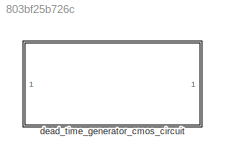
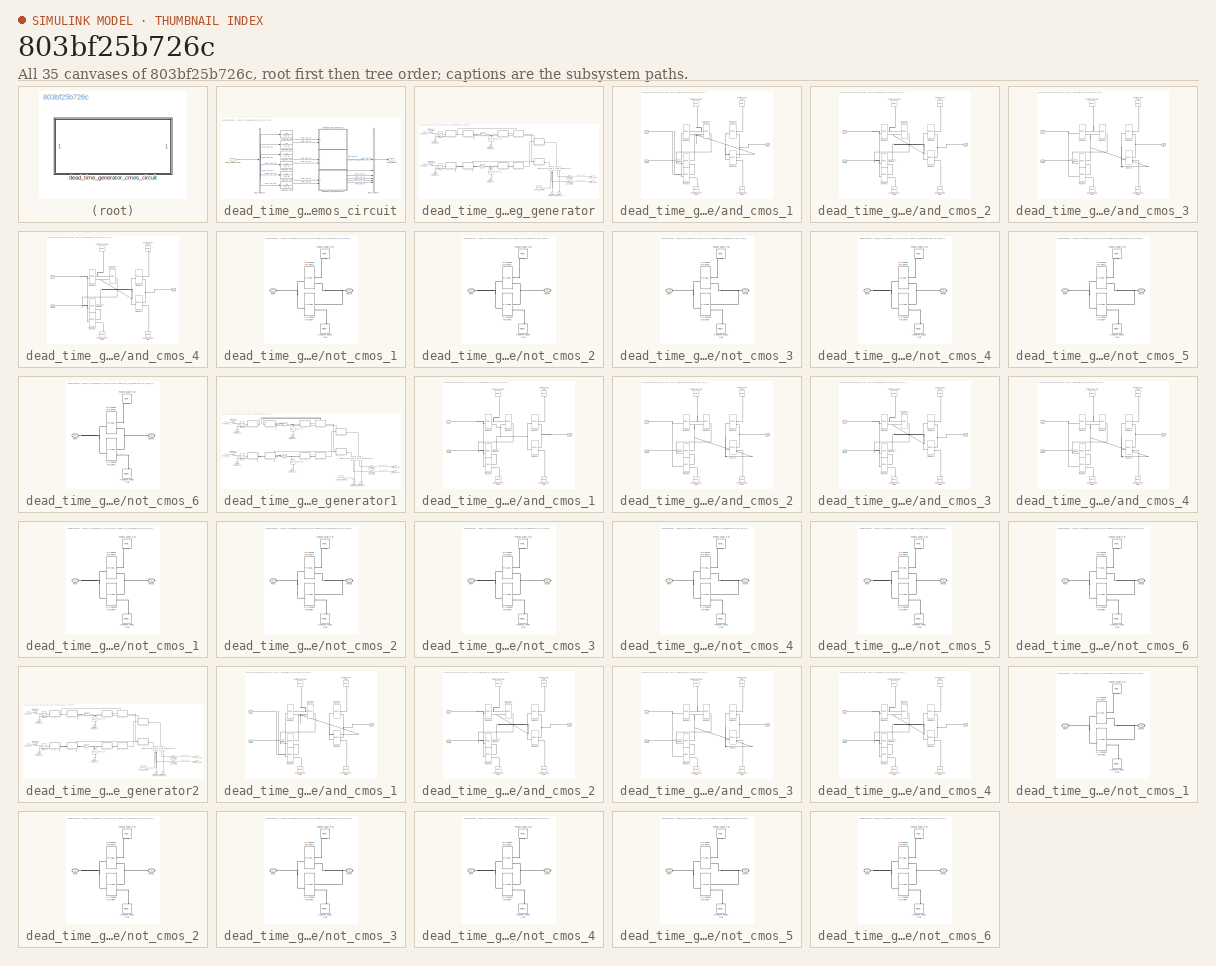
[diagram: thumbnail index - all 35 canvases of the model, root first then tree order]
MODEL slx_803bf25b726c
KIND library
CONFIG AbsTol = auto
CONFIG EnableMultiTasking = off
CONFIG FixedStep = auto
CONFIG MaxStep = auto
CONFIG MinStep = auto
CONFIG RelTol = 1e-3
CONFIG SampleTimeConstraint = Unconstrained
CONFIG SolverName = VariableStepAuto
CONFIG StartTime = 0.0
CONFIG StopTime = 10.0
BLOCK [SubSystem] dead_time_generator_cmos_circuit
BLOCK [BusCreator] dead_time_generator_cmos_circuit/Bus Creator
  DisplayOption = bar
  InheritFromInputs = on
  Inputs = 6
BLOCK [BusSelector] dead_time_generator_cmos_circuit/Bus Selector
  OutputSignals = gate_cmd_Q1,gate_cmd_Q2,gate_cmd_Q3,gate_cmd_Q4,gate_cmd_Q5,gate_cmd_Q6
BLOCK [TransferFcn] dead_time_generator_cmos_circuit/Transfer Fcn
  Denominator = [ts 1]
BLOCK [TransferFcn] dead_time_generator_cmos_circuit/Transfer Fcn1
  Denominator = [ts 1]
BLOCK [TransferFcn] dead_time_generator_cmos_circuit/Transfer Fcn2
  Denominator = [ts 1]
BLOCK [TransferFcn] dead_time_generator_cmos_circuit/Transfer Fcn3
  Denominator = [ts 1]
BLOCK [TransferFcn] dead_time_generator_cmos_circuit/Transfer Fcn4
  Denominator = [ts 1]
BLOCK [TransferFcn] dead_time_generator_cmos_circuit/Transfer Fcn5
  Denominator = [ts 1]
BLOCK [Outport] dead_time_generator_cmos_circuit/cmd_gates
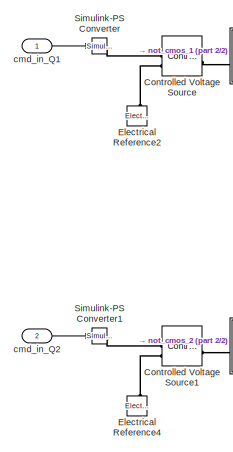
[diagram: dead_time_generator_cmos_circuit/deadtime_leg_generator - part 1/2, middle left region]
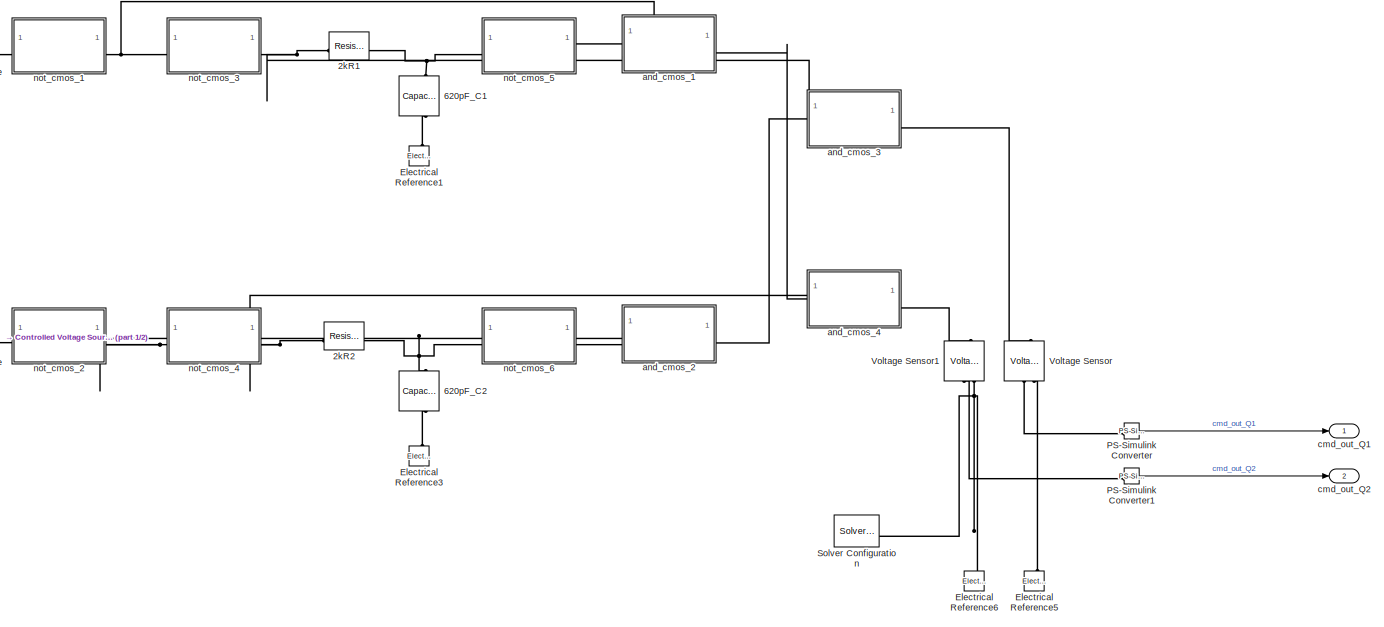
[diagram: dead_time_generator_cmos_circuit/deadtime_leg_generator - part 2/2, most of the canvas]
BLOCK [SubSystem] dead_time_generator_cmos_circuit/deadtime_leg_generator
BLOCK [Reference] dead_time_generator_cmos_circuit/deadtime_leg_generator/2kR1  REF=fl_lib/Electrical/Electrical Elements/Resistor
  SourceBlock = fl_lib/Electrical/Electrical Elements/Resistor
  SourceType = Resistor
BLOCK [Reference] dead_time_generator_cmos_circuit/deadtime_leg_generator/2kR2  REF=fl_lib/Electrical/Electrical Elements/Resistor
  SourceBlock = fl_lib/Electrical/Electrical Elements/Resistor
  SourceType = Resistor
BLOCK [Reference] dead_time_generator_cmos_circuit/deadtime_leg_generator/620pF_C1  REF=fl_lib/Electrical/Electrical Elements/Capacitor
  NameLocation = left
  SourceBlock = fl_lib/Electrical/Electrical Elements/Capacitor
  SourceType = Capacitor
BLOCK [Reference] dead_time_generator_cmos_circuit/deadtime_leg_generator/620pF_C2  REF=fl_lib/Electrical/Electrical Elements/Capacitor
  NameLocation = left
  SourceBlock = fl_lib/Electrical/Electrical Elements/Capacitor
  SourceType = Capacitor
BLOCK [Reference] dead_time_generator_cmos_circuit/deadtime_leg_generator/Controlled Voltage Source  REF=fl_lib/Electrical/Electrical Sources/Controlled Voltage
Source
  SourceBlock = fl_lib/Electrical/Electrical Sources/Controlled Voltage\nSource
  SourceType = Controlled Voltage\nSource
BLOCK [Reference] dead_time_generator_cmos_circuit/deadtime_leg_generator/Controlled Voltage Source1  REF=fl_lib/Electrical/Electrical Sources/Controlled Voltage
Source
  SourceBlock = fl_lib/Electrical/Electrical Sources/Controlled Voltage\nSource
  SourceType = Controlled Voltage\nSource
BLOCK [Reference] dead_time_generator_cmos_circuit/deadtime_leg_generator/Electrical Reference1  REF=fl_lib/Electrical/Electrical Elements/Electrical Reference
  NameLocation = right
  SourceBlock = fl_lib/Electrical/Electrical Elements/Electrical Reference
  SourceType = Electrical Reference
BLOCK [Reference] dead_time_generator_cmos_circuit/deadtime_leg_generator/Electrical Reference2  REF=fl_lib/Electrical/Electrical Elements/Electrical Reference
  NameLocation = right
  SourceBlock = fl_lib/Electrical/Electrical Elements/Electrical Reference
  SourceType = Electrical Reference
BLOCK [Reference] dead_time_generator_cmos_circuit/deadtime_leg_generator/Electrical Reference3  REF=fl_lib/Electrical/Electrical Elements/Electrical Reference
  NameLocation = right
  SourceBlock = fl_lib/Electrical/Electrical Elements/Electrical Reference
  SourceType = Electrical Reference
BLOCK [Reference] dead_time_generator_cmos_circuit/deadtime_leg_generator/Electrical Reference4  REF=fl_lib/Electrical/Electrical Elements/Electrical Reference
  NameLocation = right
  SourceBlock = fl_lib/Electrical/Electrical Elements/Electrical Reference
  SourceType = Electrical Reference
BLOCK [Reference] dead_time_generator_cmos_circuit/deadtime_leg_generator/Electrical Reference5  REF=fl_lib/Electrical/Electrical Elements/Electrical Reference
  SourceBlock = fl_lib/Electrical/Electrical Elements/Electrical Reference
  SourceType = Electrical Reference
BLOCK [Reference] dead_time_generator_cmos_circuit/deadtime_leg_generator/Electrical Reference6  REF=fl_lib/Electrical/Electrical Elements/Electrical Reference
  SourceBlock = fl_lib/Electrical/Electrical Elements/Electrical Reference
  SourceType = Electrical Reference
BLOCK [Reference] dead_time_generator_cmos_circuit/deadtime_leg_generator/PS-Simulink Converter  REF=nesl_utility/PS-Simulink
Converter
  SourceBlock = nesl_utility/PS-Simulink\nConverter
  SourceType = PS-Simulink\nConverter
BLOCK [Reference] dead_time_generator_cmos_circuit/deadtime_leg_generator/PS-Simulink Converter1  REF=nesl_utility/PS-Simulink
Converter
  SourceBlock = nesl_utility/PS-Simulink\nConverter
  SourceType = PS-Simulink\nConverter
BLOCK [Reference] dead_time_generator_cmos_circuit/deadtime_leg_generator/Simulink-PS Converter  REF=nesl_utility/Simulink-PS
Converter
  SourceBlock = nesl_utility/Simulink-PS\nConverter
  SourceType = Simulink-PS\nConverter
BLOCK [Reference] dead_time_generator_cmos_circuit/deadtime_leg_generator/Simulink-PS Converter1  REF=nesl_utility/Simulink-PS
Converter
  SourceBlock = nesl_utility/Simulink-PS\nConverter
  SourceType = Simulink-PS\nConverter
BLOCK [Reference] dead_time_generator_cmos_circuit/deadtime_leg_generator/Solver Configuration  REF=nesl_utility/Solver
Configuration
  SourceBlock = nesl_utility/Solver\nConfiguration
  SourceType = Solver\nConfiguration
BLOCK [Reference] dead_time_generator_cmos_circuit/deadtime_leg_generator/Voltage Sensor  REF=fl_lib/Electrical/Electrical Sensors/Voltage Sensor
  NameLocation = right
  SourceBlock = fl_lib/Electrical/Electrical Sensors/Voltage Sensor
  SourceType = Voltage Sensor
BLOCK [Reference] dead_time_generator_cmos_circuit/deadtime_leg_generator/Voltage Sensor1  REF=fl_lib/Electrical/Electrical Sensors/Voltage Sensor
  NameLocation = right
  SourceBlock = fl_lib/Electrical/Electrical Sensors/Voltage Sensor
  SourceType = Voltage Sensor
BLOCK [SubSystem] dead_time_generator_cmos_circuit/deadtime_leg_generator/and_cmos_1
  PortSchema = {"entries":[{"content":{"sides":[{"content":{"connectorIds":["LConn1"]},"type":"ConnectorPlacement.EquallySpacedRectSide","uuid":"4468949f-f30a-49ce-949f-963bd607b697"},{"content":{"connectorIds":["RConn1"],"side":"RIGHT"},"type":"ConnectorPlacement.EquallySpacedRectSide","uuid":"ceda4040-901d-4fda-af9a-fc2c310617d8"},{"content":{"connectorIds":["LConn2"],"side":"TOP"},"type":"ConnectorPlacement.E...<+253ch>  <repeated x12 — deduplicated; at blocks: and_cmos_1, and_cmos_2, and_cmos_3, and_cmos_4>
BLOCK [Reference] dead_time_generator_cmos_circuit/deadtime_leg_generator/and_cmos_1/N-Channel MOSFET  REF=ee_lib/Semiconductors &
Converters/N-Channel MOSFET
  SourceBlock = ee_lib/Semiconductors &\nConverters/N-Channel MOSFET
  SourceType = N-Channel MOSFET
BLOCK [Reference] dead_time_generator_cmos_circuit/deadtime_leg_generator/and_cmos_1/N-Channel MOSFET1  REF=ee_lib/Semiconductors &
Converters/N-Channel MOSFET
  SourceBlock = ee_lib/Semiconductors &\nConverters/N-Channel MOSFET
  SourceType = N-Channel MOSFET
BLOCK [Reference] dead_time_generator_cmos_circuit/deadtime_leg_generator/and_cmos_1/N-Channel MOSFET2  REF=ee_lib/Semiconductors &
Converters/N-Channel MOSFET
  SourceBlock = ee_lib/Semiconductors &\nConverters/N-Channel MOSFET
  SourceType = N-Channel MOSFET
BLOCK [Reference] dead_time_generator_cmos_circuit/deadtime_leg_generator/and_cmos_1/Negative Supply Rail1  REF=ee_lib/Sources/Negative Supply Rail
  NameLocation = right
  SourceBlock = ee_lib/Sources/Negative Supply Rail
  SourceType = Negative Supply Rail
BLOCK [Reference] dead_time_generator_cmos_circuit/deadtime_leg_generator/and_cmos_1/Negative Supply Rail2  REF=ee_lib/Sources/Negative Supply Rail
  NameLocation = right
  SourceBlock = ee_lib/Sources/Negative Supply Rail
  SourceType = Negative Supply Rail
BLOCK [Reference] dead_time_generator_cmos_circuit/deadtime_leg_generator/and_cmos_1/P-Channel MOSFET1  REF=ee_lib/Semiconductors &
Converters/P-Channel MOSFET
  SourceBlock = ee_lib/Semiconductors &\nConverters/P-Channel MOSFET
  SourceType = P-Channel MOSFET
BLOCK [Reference] dead_time_generator_cmos_circuit/deadtime_leg_generator/and_cmos_1/P-Channel MOSFET2  REF=ee_lib/Semiconductors &
Converters/P-Channel MOSFET
  SourceBlock = ee_lib/Semiconductors &\nConverters/P-Channel MOSFET
  SourceType = P-Channel MOSFET
BLOCK [Reference] dead_time_generator_cmos_circuit/deadtime_leg_generator/and_cmos_1/P-Channel MOSFET3  REF=ee_lib/Semiconductors &
Converters/P-Channel MOSFET
  SourceBlock = ee_lib/Semiconductors &\nConverters/P-Channel MOSFET
  SourceType = P-Channel MOSFET
BLOCK [Reference] dead_time_generator_cmos_circuit/deadtime_leg_generator/and_cmos_1/Positive Supply Rail  REF=ee_lib/Sources/Positive Supply Rail
  NameLocation = right
  SourceBlock = ee_lib/Sources/Positive Supply Rail
  SourceType = Positive Supply Rail
BLOCK [Reference] dead_time_generator_cmos_circuit/deadtime_leg_generator/and_cmos_1/Positive Supply Rail1  REF=ee_lib/Sources/Positive Supply Rail
  NameLocation = right
  SourceBlock = ee_lib/Sources/Positive Supply Rail
  SourceType = Positive Supply Rail
BLOCK [PMIOPort] dead_time_generator_cmos_circuit/deadtime_leg_generator/and_cmos_1/inputA
  Port = 2
  Side = Left
BLOCK [PMIOPort] dead_time_generator_cmos_circuit/deadtime_leg_generator/and_cmos_1/inputB
  Side = Left
BLOCK [PMIOPort] dead_time_generator_cmos_circuit/deadtime_leg_generator/and_cmos_1/output
  Port = 3
  Side = Right
BLOCK [SubSystem] dead_time_generator_cmos_circuit/deadtime_leg_generator/and_cmos_2
BLOCK [Reference] dead_time_generator_cmos_circuit/deadtime_leg_generator/and_cmos_2/N-Channel MOSFET  REF=ee_lib/Semiconductors &
Converters/N-Channel MOSFET
  SourceBlock = ee_lib/Semiconductors &\nConverters/N-Channel MOSFET
  SourceType = N-Channel MOSFET
BLOCK [Reference] dead_time_generator_cmos_circuit/deadtime_leg_generator/and_cmos_2/N-Channel MOSFET1  REF=ee_lib/Semiconductors &
Converters/N-Channel MOSFET
  SourceBlock = ee_lib/Semiconductors &\nConverters/N-Channel MOSFET
  SourceType = N-Channel MOSFET
BLOCK [Reference] dead_time_generator_cmos_circuit/deadtime_leg_generator/and_cmos_2/N-Channel MOSFET2  REF=ee_lib/Semiconductors &
Converters/N-Channel MOSFET
  SourceBlock = ee_lib/Semiconductors &\nConverters/N-Channel MOSFET
  SourceType = N-Channel MOSFET
BLOCK [Reference] dead_time_generator_cmos_circuit/deadtime_leg_generator/and_cmos_2/Negative Supply Rail1  REF=ee_lib/Sources/Negative Supply Rail
  NameLocation = right
  SourceBlock = ee_lib/Sources/Negative Supply Rail
  SourceType = Negative Supply Rail
BLOCK [Reference] dead_time_generator_cmos_circuit/deadtime_leg_generator/and_cmos_2/Negative Supply Rail2  REF=ee_lib/Sources/Negative Supply Rail
  NameLocation = right
  SourceBlock = ee_lib/Sources/Negative Supply Rail
  SourceType = Negative Supply Rail
BLOCK [Reference] dead_time_generator_cmos_circuit/deadtime_leg_generator/and_cmos_2/P-Channel MOSFET1  REF=ee_lib/Semiconductors &
Converters/P-Channel MOSFET
  SourceBlock = ee_lib/Semiconductors &\nConverters/P-Channel MOSFET
  SourceType = P-Channel MOSFET
BLOCK [Reference] dead_time_generator_cmos_circuit/deadtime_leg_generator/and_cmos_2/P-Channel MOSFET2  REF=ee_lib/Semiconductors &
Converters/P-Channel MOSFET
  SourceBlock = ee_lib/Semiconductors &\nConverters/P-Channel MOSFET
  SourceType = P-Channel MOSFET
BLOCK [Reference] dead_time_generator_cmos_circuit/deadtime_leg_generator/and_cmos_2/P-Channel MOSFET3  REF=ee_lib/Semiconductors &
Converters/P-Channel MOSFET
  SourceBlock = ee_lib/Semiconductors &\nConverters/P-Channel MOSFET
  SourceType = P-Channel MOSFET
BLOCK [Reference] dead_time_generator_cmos_circuit/deadtime_leg_generator/and_cmos_2/Positive Supply Rail  REF=ee_lib/Sources/Positive Supply Rail
  NameLocation = right
  SourceBlock = ee_lib/Sources/Positive Supply Rail
  SourceType = Positive Supply Rail
BLOCK [Reference] dead_time_generator_cmos_circuit/deadtime_leg_generator/and_cmos_2/Positive Supply Rail1  REF=ee_lib/Sources/Positive Supply Rail
  NameLocation = right
  SourceBlock = ee_lib/Sources/Positive Supply Rail
  SourceType = Positive Supply Rail
BLOCK [PMIOPort] dead_time_generator_cmos_circuit/deadtime_leg_generator/and_cmos_2/inputA
  Port = 2
  Side = Left
BLOCK [PMIOPort] dead_time_generator_cmos_circuit/deadtime_leg_generator/and_cmos_2/inputB
  Side = Left
BLOCK [PMIOPort] dead_time_generator_cmos_circuit/deadtime_leg_generator/and_cmos_2/output
  Port = 3
  Side = Right
BLOCK [SubSystem] dead_time_generator_cmos_circuit/deadtime_leg_generator/and_cmos_3
BLOCK [Reference] dead_time_generator_cmos_circuit/deadtime_leg_generator/and_cmos_3/N-Channel MOSFET  REF=ee_lib/Semiconductors &
Converters/N-Channel MOSFET
  SourceBlock = ee_lib/Semiconductors &\nConverters/N-Channel MOSFET
  SourceType = N-Channel MOSFET
BLOCK [Reference] dead_time_generator_cmos_circuit/deadtime_leg_generator/and_cmos_3/N-Channel MOSFET1  REF=ee_lib/Semiconductors &
Converters/N-Channel MOSFET
  SourceBlock = ee_lib/Semiconductors &\nConverters/N-Channel MOSFET
  SourceType = N-Channel MOSFET
BLOCK [Reference] dead_time_generator_cmos_circuit/deadtime_leg_generator/and_cmos_3/N-Channel MOSFET2  REF=ee_lib/Semiconductors &
Converters/N-Channel MOSFET
  SourceBlock = ee_lib/Semiconductors &\nConverters/N-Channel MOSFET
  SourceType = N-Channel MOSFET
BLOCK [Reference] dead_time_generator_cmos_circuit/deadtime_leg_generator/and_cmos_3/Negative Supply Rail1  REF=ee_lib/Sources/Negative Supply Rail
  NameLocation = right
  SourceBlock = ee_lib/Sources/Negative Supply Rail
  SourceType = Negative Supply Rail
BLOCK [Reference] dead_time_generator_cmos_circuit/deadtime_leg_generator/and_cmos_3/Negative Supply Rail2  REF=ee_lib/Sources/Negative Supply Rail
  NameLocation = right
  SourceBlock = ee_lib/Sources/Negative Supply Rail
  SourceType = Negative Supply Rail
BLOCK [Reference] dead_time_generator_cmos_circuit/deadtime_leg_generator/and_cmos_3/P-Channel MOSFET1  REF=ee_lib/Semiconductors &
Converters/P-Channel MOSFET
  SourceBlock = ee_lib/Semiconductors &\nConverters/P-Channel MOSFET
  SourceType = P-Channel MOSFET
BLOCK [Reference] dead_time_generator_cmos_circuit/deadtime_leg_generator/and_cmos_3/P-Channel MOSFET2  REF=ee_lib/Semiconductors &
Converters/P-Channel MOSFET
  SourceBlock = ee_lib/Semiconductors &\nConverters/P-Channel MOSFET
  SourceType = P-Channel MOSFET
BLOCK [Reference] dead_time_generator_cmos_circuit/deadtime_leg_generator/and_cmos_3/P-Channel MOSFET3  REF=ee_lib/Semiconductors &
Converters/P-Channel MOSFET
  SourceBlock = ee_lib/Semiconductors &\nConverters/P-Channel MOSFET
  SourceType = P-Channel MOSFET
BLOCK [Reference] dead_time_generator_cmos_circuit/deadtime_leg_generator/and_cmos_3/Positive Supply Rail  REF=ee_lib/Sources/Positive Supply Rail
  NameLocation = right
  SourceBlock = ee_lib/Sources/Positive Supply Rail
  SourceType = Positive Supply Rail
BLOCK [Reference] dead_time_generator_cmos_circuit/deadtime_leg_generator/and_cmos_3/Positive Supply Rail1  REF=ee_lib/Sources/Positive Supply Rail
  NameLocation = right
  SourceBlock = ee_lib/Sources/Positive Supply Rail
  SourceType = Positive Supply Rail
BLOCK [PMIOPort] dead_time_generator_cmos_circuit/deadtime_leg_generator/and_cmos_3/inputA
  Port = 2
  Side = Left
BLOCK [PMIOPort] dead_time_generator_cmos_circuit/deadtime_leg_generator/and_cmos_3/inputB
  Side = Left
BLOCK [PMIOPort] dead_time_generator_cmos_circuit/deadtime_leg_generator/and_cmos_3/output
  Port = 3
  Side = Right
BLOCK [SubSystem] dead_time_generator_cmos_circuit/deadtime_leg_generator/and_cmos_4
BLOCK [Reference] dead_time_generator_cmos_circuit/deadtime_leg_generator/and_cmos_4/N-Channel MOSFET  REF=ee_lib/Semiconductors &
Converters/N-Channel MOSFET
  SourceBlock = ee_lib/Semiconductors &\nConverters/N-Channel MOSFET
  SourceType = N-Channel MOSFET
BLOCK [Reference] dead_time_generator_cmos_circuit/deadtime_leg_generator/and_cmos_4/N-Channel MOSFET1  REF=ee_lib/Semiconductors &
Converters/N-Channel MOSFET
  SourceBlock = ee_lib/Semiconductors &\nConverters/N-Channel MOSFET
  SourceType = N-Channel MOSFET
BLOCK [Reference] dead_time_generator_cmos_circuit/deadtime_leg_generator/and_cmos_4/N-Channel MOSFET2  REF=ee_lib/Semiconductors &
Converters/N-Channel MOSFET
  SourceBlock = ee_lib/Semiconductors &\nConverters/N-Channel MOSFET
  SourceType = N-Channel MOSFET
BLOCK [Reference] dead_time_generator_cmos_circuit/deadtime_leg_generator/and_cmos_4/Negative Supply Rail1  REF=ee_lib/Sources/Negative Supply Rail
  NameLocation = right
  SourceBlock = ee_lib/Sources/Negative Supply Rail
  SourceType = Negative Supply Rail
BLOCK [Reference] dead_time_generator_cmos_circuit/deadtime_leg_generator/and_cmos_4/Negative Supply Rail2  REF=ee_lib/Sources/Negative Supply Rail
  NameLocation = right
  SourceBlock = ee_lib/Sources/Negative Supply Rail
  SourceType = Negative Supply Rail
BLOCK [Reference] dead_time_generator_cmos_circuit/deadtime_leg_generator/and_cmos_4/P-Channel MOSFET1  REF=ee_lib/Semiconductors &
Converters/P-Channel MOSFET
  SourceBlock = ee_lib/Semiconductors &\nConverters/P-Channel MOSFET
  SourceType = P-Channel MOSFET
BLOCK [Reference] dead_time_generator_cmos_circuit/deadtime_leg_generator/and_cmos_4/P-Channel MOSFET2  REF=ee_lib/Semiconductors &
Converters/P-Channel MOSFET
  SourceBlock = ee_lib/Semiconductors &\nConverters/P-Channel MOSFET
  SourceType = P-Channel MOSFET
BLOCK [Reference] dead_time_generator_cmos_circuit/deadtime_leg_generator/and_cmos_4/P-Channel MOSFET3  REF=ee_lib/Semiconductors &
Converters/P-Channel MOSFET
  SourceBlock = ee_lib/Semiconductors &\nConverters/P-Channel MOSFET
  SourceType = P-Channel MOSFET
BLOCK [Reference] dead_time_generator_cmos_circuit/deadtime_leg_generator/and_cmos_4/Positive Supply Rail  REF=ee_lib/Sources/Positive Supply Rail
  NameLocation = right
  SourceBlock = ee_lib/Sources/Positive Supply Rail
  SourceType = Positive Supply Rail
BLOCK [Reference] dead_time_generator_cmos_circuit/deadtime_leg_generator/and_cmos_4/Positive Supply Rail1  REF=ee_lib/Sources/Positive Supply Rail
  NameLocation = right
  SourceBlock = ee_lib/Sources/Positive Supply Rail
  SourceType = Positive Supply Rail
BLOCK [PMIOPort] dead_time_generator_cmos_circuit/deadtime_leg_generator/and_cmos_4/inputA
  Port = 2
  Side = Left
BLOCK [PMIOPort] dead_time_generator_cmos_circuit/deadtime_leg_generator/and_cmos_4/inputB
  Side = Left
BLOCK [PMIOPort] dead_time_generator_cmos_circuit/deadtime_leg_generator/and_cmos_4/output
  Port = 3
  Side = Right
BLOCK [Inport] dead_time_generator_cmos_circuit/deadtime_leg_generator/cmd_in_Q1
BLOCK [Inport] dead_time_generator_cmos_circuit/deadtime_leg_generator/cmd_in_Q2
  Port = 2
BLOCK [Outport] dead_time_generator_cmos_circuit/deadtime_leg_generator/cmd_out_Q1
BLOCK [Outport] dead_time_generator_cmos_circuit/deadtime_leg_generator/cmd_out_Q2
  Port = 2
BLOCK [SubSystem] dead_time_generator_cmos_circuit/deadtime_leg_generator/not_cmos_1
BLOCK [Reference] dead_time_generator_cmos_circuit/deadtime_leg_generator/not_cmos_1/N-Channel MOSFET  REF=ee_lib/Semiconductors &
Converters/N-Channel MOSFET
  SourceBlock = ee_lib/Semiconductors &\nConverters/N-Channel MOSFET
  SourceType = N-Channel MOSFET
BLOCK [Reference] dead_time_generator_cmos_circuit/deadtime_leg_generator/not_cmos_1/Negative Supply Rail  REF=ee_lib/Sources/Negative Supply Rail
  NameLocation = right
  SourceBlock = ee_lib/Sources/Negative Supply Rail
  SourceType = Negative Supply Rail
BLOCK [Reference] dead_time_generator_cmos_circuit/deadtime_leg_generator/not_cmos_1/P-Channel MOSFET1  REF=ee_lib/Semiconductors &
Converters/P-Channel MOSFET
  SourceBlock = ee_lib/Semiconductors &\nConverters/P-Channel MOSFET
  SourceType = P-Channel MOSFET
BLOCK [Reference] dead_time_generator_cmos_circuit/deadtime_leg_generator/not_cmos_1/Positive Supply Rail  REF=ee_lib/Sources/Positive Supply Rail
  NameLocation = right
  SourceBlock = ee_lib/Sources/Positive Supply Rail
  SourceType = Positive Supply Rail
BLOCK [PMIOPort] dead_time_generator_cmos_circuit/deadtime_leg_generator/not_cmos_1/input
  Side = Left
BLOCK [PMIOPort] dead_time_generator_cmos_circuit/deadtime_leg_generator/not_cmos_1/output
  Port = 2
  Side = Right
BLOCK [SubSystem] dead_time_generator_cmos_circuit/deadtime_leg_generator/not_cmos_2
BLOCK [Reference] dead_time_generator_cmos_circuit/deadtime_leg_generator/not_cmos_2/N-Channel MOSFET  REF=ee_lib/Semiconductors &
Converters/N-Channel MOSFET
  SourceBlock = ee_lib/Semiconductors &\nConverters/N-Channel MOSFET
  SourceType = N-Channel MOSFET
BLOCK [Reference] dead_time_generator_cmos_circuit/deadtime_leg_generator/not_cmos_2/Negative Supply Rail  REF=ee_lib/Sources/Negative Supply Rail
  NameLocation = right
  SourceBlock = ee_lib/Sources/Negative Supply Rail
  SourceType = Negative Supply Rail
BLOCK [Reference] dead_time_generator_cmos_circuit/deadtime_leg_generator/not_cmos_2/P-Channel MOSFET1  REF=ee_lib/Semiconductors &
Converters/P-Channel MOSFET
  SourceBlock = ee_lib/Semiconductors &\nConverters/P-Channel MOSFET
  SourceType = P-Channel MOSFET
BLOCK [Reference] dead_time_generator_cmos_circuit/deadtime_leg_generator/not_cmos_2/Positive Supply Rail  REF=ee_lib/Sources/Positive Supply Rail
  NameLocation = right
  SourceBlock = ee_lib/Sources/Positive Supply Rail
  SourceType = Positive Supply Rail
BLOCK [PMIOPort] dead_time_generator_cmos_circuit/deadtime_leg_generator/not_cmos_2/input
  Side = Left
BLOCK [PMIOPort] dead_time_generator_cmos_circuit/deadtime_leg_generator/not_cmos_2/output
  Port = 2
  Side = Right
BLOCK [SubSystem] dead_time_generator_cmos_circuit/deadtime_leg_generator/not_cmos_3
BLOCK [Reference] dead_time_generator_cmos_circuit/deadtime_leg_generator/not_cmos_3/N-Channel MOSFET  REF=ee_lib/Semiconductors &
Converters/N-Channel MOSFET
  SourceBlock = ee_lib/Semiconductors &\nConverters/N-Channel MOSFET
  SourceType = N-Channel MOSFET
BLOCK [Reference] dead_time_generator_cmos_circuit/deadtime_leg_generator/not_cmos_3/Negative Supply Rail  REF=ee_lib/Sources/Negative Supply Rail
  NameLocation = right
  SourceBlock = ee_lib/Sources/Negative Supply Rail
  SourceType = Negative Supply Rail
BLOCK [Reference] dead_time_generator_cmos_circuit/deadtime_leg_generator/not_cmos_3/P-Channel MOSFET1  REF=ee_lib/Semiconductors &
Converters/P-Channel MOSFET
  SourceBlock = ee_lib/Semiconductors &\nConverters/P-Channel MOSFET
  SourceType = P-Channel MOSFET
BLOCK [Reference] dead_time_generator_cmos_circuit/deadtime_leg_generator/not_cmos_3/Positive Supply Rail  REF=ee_lib/Sources/Positive Supply Rail
  NameLocation = right
  SourceBlock = ee_lib/Sources/Positive Supply Rail
  SourceType = Positive Supply Rail
BLOCK [PMIOPort] dead_time_generator_cmos_circuit/deadtime_leg_generator/not_cmos_3/input
  Side = Left
BLOCK [PMIOPort] dead_time_generator_cmos_circuit/deadtime_leg_generator/not_cmos_3/output
  Port = 2
  Side = Right
BLOCK [SubSystem] dead_time_generator_cmos_circuit/deadtime_leg_generator/not_cmos_4
BLOCK [Reference] dead_time_generator_cmos_circuit/deadtime_leg_generator/not_cmos_4/N-Channel MOSFET  REF=ee_lib/Semiconductors &
Converters/N-Channel MOSFET
  SourceBlock = ee_lib/Semiconductors &\nConverters/N-Channel MOSFET
  SourceType = N-Channel MOSFET
BLOCK [Reference] dead_time_generator_cmos_circuit/deadtime_leg_generator/not_cmos_4/Negative Supply Rail  REF=ee_lib/Sources/Negative Supply Rail
  NameLocation = right
  SourceBlock = ee_lib/Sources/Negative Supply Rail
  SourceType = Negative Supply Rail
BLOCK [Reference] dead_time_generator_cmos_circuit/deadtime_leg_generator/not_cmos_4/P-Channel MOSFET1  REF=ee_lib/Semiconductors &
Converters/P-Channel MOSFET
  SourceBlock = ee_lib/Semiconductors &\nConverters/P-Channel MOSFET
  SourceType = P-Channel MOSFET
BLOCK [Reference] dead_time_generator_cmos_circuit/deadtime_leg_generator/not_cmos_4/Positive Supply Rail  REF=ee_lib/Sources/Positive Supply Rail
  NameLocation = right
  SourceBlock = ee_lib/Sources/Positive Supply Rail
  SourceType = Positive Supply Rail
BLOCK [PMIOPort] dead_time_generator_cmos_circuit/deadtime_leg_generator/not_cmos_4/input
  Side = Left
BLOCK [PMIOPort] dead_time_generator_cmos_circuit/deadtime_leg_generator/not_cmos_4/output
  Port = 2
  Side = Right
BLOCK [SubSystem] dead_time_generator_cmos_circuit/deadtime_leg_generator/not_cmos_5
BLOCK [Reference] dead_time_generator_cmos_circuit/deadtime_leg_generator/not_cmos_5/N-Channel MOSFET  REF=ee_lib/Semiconductors &
Converters/N-Channel MOSFET
  SourceBlock = ee_lib/Semiconductors &\nConverters/N-Channel MOSFET
  SourceType = N-Channel MOSFET
BLOCK [Reference] dead_time_generator_cmos_circuit/deadtime_leg_generator/not_cmos_5/Negative Supply Rail  REF=ee_lib/Sources/Negative Supply Rail
  NameLocation = right
  SourceBlock = ee_lib/Sources/Negative Supply Rail
  SourceType = Negative Supply Rail
BLOCK [Reference] dead_time_generator_cmos_circuit/deadtime_leg_generator/not_cmos_5/P-Channel MOSFET1  REF=ee_lib/Semiconductors &
Converters/P-Channel MOSFET
  SourceBlock = ee_lib/Semiconductors &\nConverters/P-Channel MOSFET
  SourceType = P-Channel MOSFET
BLOCK [Reference] dead_time_generator_cmos_circuit/deadtime_leg_generator/not_cmos_5/Positive Supply Rail  REF=ee_lib/Sources/Positive Supply Rail
  NameLocation = right
  SourceBlock = ee_lib/Sources/Positive Supply Rail
  SourceType = Positive Supply Rail
BLOCK [PMIOPort] dead_time_generator_cmos_circuit/deadtime_leg_generator/not_cmos_5/input
  Side = Left
BLOCK [PMIOPort] dead_time_generator_cmos_circuit/deadtime_leg_generator/not_cmos_5/output
  Port = 2
  Side = Right
BLOCK [SubSystem] dead_time_generator_cmos_circuit/deadtime_leg_generator/not_cmos_6
BLOCK [Reference] dead_time_generator_cmos_circuit/deadtime_leg_generator/not_cmos_6/N-Channel MOSFET  REF=ee_lib/Semiconductors &
Converters/N-Channel MOSFET
  SourceBlock = ee_lib/Semiconductors &\nConverters/N-Channel MOSFET
  SourceType = N-Channel MOSFET
BLOCK [Reference] dead_time_generator_cmos_circuit/deadtime_leg_generator/not_cmos_6/Negative Supply Rail  REF=ee_lib/Sources/Negative Supply Rail
  NameLocation = right
  SourceBlock = ee_lib/Sources/Negative Supply Rail
  SourceType = Negative Supply Rail
BLOCK [Reference] dead_time_generator_cmos_circuit/deadtime_leg_generator/not_cmos_6/P-Channel MOSFET1  REF=ee_lib/Semiconductors &
Converters/P-Channel MOSFET
  SourceBlock = ee_lib/Semiconductors &\nConverters/P-Channel MOSFET
  SourceType = P-Channel MOSFET
BLOCK [Reference] dead_time_generator_cmos_circuit/deadtime_leg_generator/not_cmos_6/Positive Supply Rail  REF=ee_lib/Sources/Positive Supply Rail
  NameLocation = right
  SourceBlock = ee_lib/Sources/Positive Supply Rail
  SourceType = Positive Supply Rail
BLOCK [PMIOPort] dead_time_generator_cmos_circuit/deadtime_leg_generator/not_cmos_6/input
  Side = Left
BLOCK [PMIOPort] dead_time_generator_cmos_circuit/deadtime_leg_generator/not_cmos_6/output
  Port = 2
  Side = Right
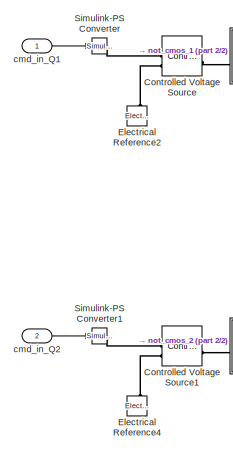
[diagram: dead_time_generator_cmos_circuit/deadtime_leg_generator1 - part 1/2, middle left region]
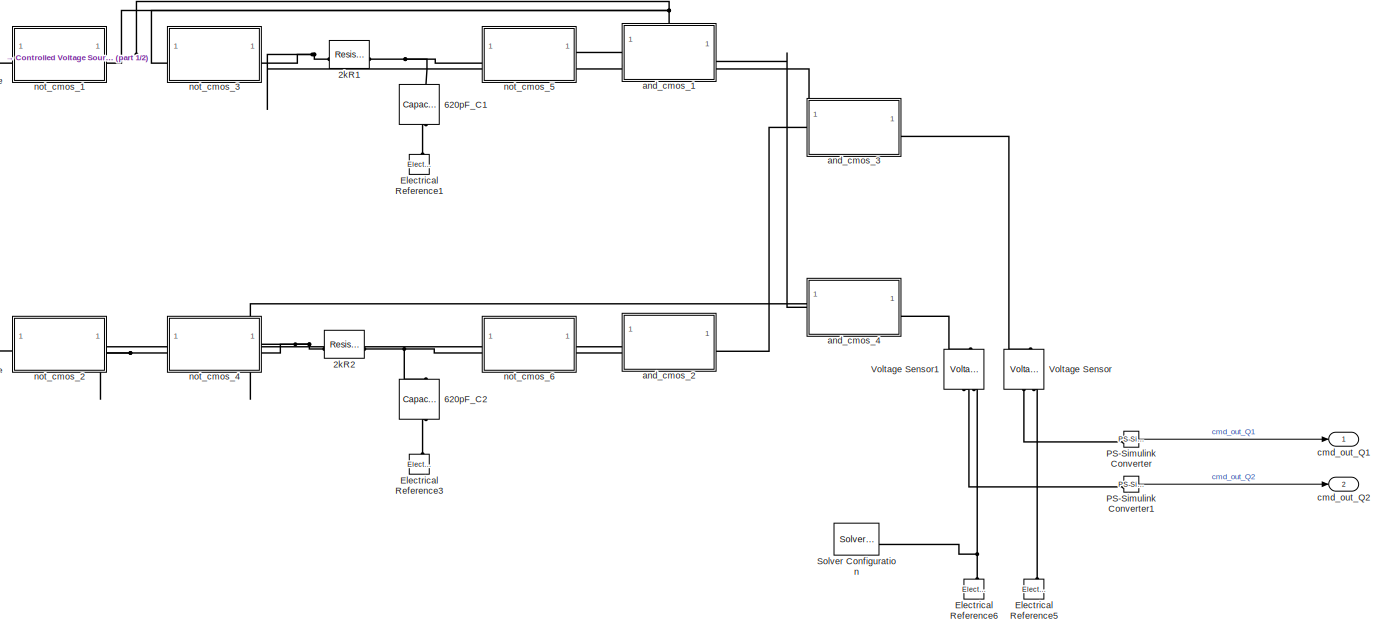
[diagram: dead_time_generator_cmos_circuit/deadtime_leg_generator1 - part 2/2, most of the canvas]
BLOCK [SubSystem] dead_time_generator_cmos_circuit/deadtime_leg_generator1
BLOCK [Reference] dead_time_generator_cmos_circuit/deadtime_leg_generator1/2kR1  REF=fl_lib/Electrical/Electrical Elements/Resistor
  SourceBlock = fl_lib/Electrical/Electrical Elements/Resistor
  SourceType = Resistor
BLOCK [Reference] dead_time_generator_cmos_circuit/deadtime_leg_generator1/2kR2  REF=fl_lib/Electrical/Electrical Elements/Resistor
  SourceBlock = fl_lib/Electrical/Electrical Elements/Resistor
  SourceType = Resistor
BLOCK [Reference] dead_time_generator_cmos_circuit/deadtime_leg_generator1/620pF_C1  REF=fl_lib/Electrical/Electrical Elements/Capacitor
  NameLocation = left
  SourceBlock = fl_lib/Electrical/Electrical Elements/Capacitor
  SourceType = Capacitor
BLOCK [Reference] dead_time_generator_cmos_circuit/deadtime_leg_generator1/620pF_C2  REF=fl_lib/Electrical/Electrical Elements/Capacitor
  NameLocation = left
  SourceBlock = fl_lib/Electrical/Electrical Elements/Capacitor
  SourceType = Capacitor
BLOCK [Reference] dead_time_generator_cmos_circuit/deadtime_leg_generator1/Controlled Voltage Source  REF=fl_lib/Electrical/Electrical Sources/Controlled Voltage
Source
  SourceBlock = fl_lib/Electrical/Electrical Sources/Controlled Voltage\nSource
  SourceType = Controlled Voltage\nSource
BLOCK [Reference] dead_time_generator_cmos_circuit/deadtime_leg_generator1/Controlled Voltage Source1  REF=fl_lib/Electrical/Electrical Sources/Controlled Voltage
Source
  SourceBlock = fl_lib/Electrical/Electrical Sources/Controlled Voltage\nSource
  SourceType = Controlled Voltage\nSource
BLOCK [Reference] dead_time_generator_cmos_circuit/deadtime_leg_generator1/Electrical Reference1  REF=fl_lib/Electrical/Electrical Elements/Electrical Reference
  NameLocation = right
  SourceBlock = fl_lib/Electrical/Electrical Elements/Electrical Reference
  SourceType = Electrical Reference
BLOCK [Reference] dead_time_generator_cmos_circuit/deadtime_leg_generator1/Electrical Reference2  REF=fl_lib/Electrical/Electrical Elements/Electrical Reference
  NameLocation = right
  SourceBlock = fl_lib/Electrical/Electrical Elements/Electrical Reference
  SourceType = Electrical Reference
BLOCK [Reference] dead_time_generator_cmos_circuit/deadtime_leg_generator1/Electrical Reference3  REF=fl_lib/Electrical/Electrical Elements/Electrical Reference
  NameLocation = right
  SourceBlock = fl_lib/Electrical/Electrical Elements/Electrical Reference
  SourceType = Electrical Reference
BLOCK [Reference] dead_time_generator_cmos_circuit/deadtime_leg_generator1/Electrical Reference4  REF=fl_lib/Electrical/Electrical Elements/Electrical Reference
  NameLocation = right
  SourceBlock = fl_lib/Electrical/Electrical Elements/Electrical Reference
  SourceType = Electrical Reference
BLOCK [Reference] dead_time_generator_cmos_circuit/deadtime_leg_generator1/Electrical Reference5  REF=fl_lib/Electrical/Electrical Elements/Electrical Reference
  SourceBlock = fl_lib/Electrical/Electrical Elements/Electrical Reference
  SourceType = Electrical Reference
BLOCK [Reference] dead_time_generator_cmos_circuit/deadtime_leg_generator1/Electrical Reference6  REF=fl_lib/Electrical/Electrical Elements/Electrical Reference
  SourceBlock = fl_lib/Electrical/Electrical Elements/Electrical Reference
  SourceType = Electrical Reference
BLOCK [Reference] dead_time_generator_cmos_circuit/deadtime_leg_generator1/PS-Simulink Converter  REF=nesl_utility/PS-Simulink
Converter
  SourceBlock = nesl_utility/PS-Simulink\nConverter
  SourceType = PS-Simulink\nConverter
BLOCK [Reference] dead_time_generator_cmos_circuit/deadtime_leg_generator1/PS-Simulink Converter1  REF=nesl_utility/PS-Simulink
Converter
  SourceBlock = nesl_utility/PS-Simulink\nConverter
  SourceType = PS-Simulink\nConverter
BLOCK [Reference] dead_time_generator_cmos_circuit/deadtime_leg_generator1/Simulink-PS Converter  REF=nesl_utility/Simulink-PS
Converter
  SourceBlock = nesl_utility/Simulink-PS\nConverter
  SourceType = Simulink-PS\nConverter
BLOCK [Reference] dead_time_generator_cmos_circuit/deadtime_leg_generator1/Simulink-PS Converter1  REF=nesl_utility/Simulink-PS
Converter
  SourceBlock = nesl_utility/Simulink-PS\nConverter
  SourceType = Simulink-PS\nConverter
BLOCK [Reference] dead_time_generator_cmos_circuit/deadtime_leg_generator1/Solver Configuration  REF=nesl_utility/Solver
Configuration
  SourceBlock = nesl_utility/Solver\nConfiguration
  SourceType = Solver\nConfiguration
BLOCK [Reference] dead_time_generator_cmos_circuit/deadtime_leg_generator1/Voltage Sensor  REF=fl_lib/Electrical/Electrical Sensors/Voltage Sensor
  NameLocation = right
  SourceBlock = fl_lib/Electrical/Electrical Sensors/Voltage Sensor
  SourceType = Voltage Sensor
BLOCK [Reference] dead_time_generator_cmos_circuit/deadtime_leg_generator1/Voltage Sensor1  REF=fl_lib/Electrical/Electrical Sensors/Voltage Sensor
  NameLocation = right
  SourceBlock = fl_lib/Electrical/Electrical Sensors/Voltage Sensor
  SourceType = Voltage Sensor
BLOCK [SubSystem] dead_time_generator_cmos_circuit/deadtime_leg_generator1/and_cmos_1
BLOCK [Reference] dead_time_generator_cmos_circuit/deadtime_leg_generator1/and_cmos_1/N-Channel MOSFET  REF=ee_lib/Semiconductors &
Converters/N-Channel MOSFET
  SourceBlock = ee_lib/Semiconductors &\nConverters/N-Channel MOSFET
  SourceType = N-Channel MOSFET
BLOCK [Reference] dead_time_generator_cmos_circuit/deadtime_leg_generator1/and_cmos_1/N-Channel MOSFET1  REF=ee_lib/Semiconductors &
Converters/N-Channel MOSFET
  SourceBlock = ee_lib/Semiconductors &\nConverters/N-Channel MOSFET
  SourceType = N-Channel MOSFET
BLOCK [Reference] dead_time_generator_cmos_circuit/deadtime_leg_generator1/and_cmos_1/N-Channel MOSFET2  REF=ee_lib/Semiconductors &
Converters/N-Channel MOSFET
  SourceBlock = ee_lib/Semiconductors &\nConverters/N-Channel MOSFET
  SourceType = N-Channel MOSFET
BLOCK [Reference] dead_time_generator_cmos_circuit/deadtime_leg_generator1/and_cmos_1/Negative Supply Rail1  REF=ee_lib/Sources/Negative Supply Rail
  NameLocation = right
  SourceBlock = ee_lib/Sources/Negative Supply Rail
  SourceType = Negative Supply Rail
BLOCK [Reference] dead_time_generator_cmos_circuit/deadtime_leg_generator1/and_cmos_1/Negative Supply Rail2  REF=ee_lib/Sources/Negative Supply Rail
  NameLocation = right
  SourceBlock = ee_lib/Sources/Negative Supply Rail
  SourceType = Negative Supply Rail
BLOCK [Reference] dead_time_generator_cmos_circuit/deadtime_leg_generator1/and_cmos_1/P-Channel MOSFET1  REF=ee_lib/Semiconductors &
Converters/P-Channel MOSFET
  SourceBlock = ee_lib/Semiconductors &\nConverters/P-Channel MOSFET
  SourceType = P-Channel MOSFET
BLOCK [Reference] dead_time_generator_cmos_circuit/deadtime_leg_generator1/and_cmos_1/P-Channel MOSFET2  REF=ee_lib/Semiconductors &
Converters/P-Channel MOSFET
  SourceBlock = ee_lib/Semiconductors &\nConverters/P-Channel MOSFET
  SourceType = P-Channel MOSFET
BLOCK [Reference] dead_time_generator_cmos_circuit/deadtime_leg_generator1/and_cmos_1/P-Channel MOSFET3  REF=ee_lib/Semiconductors &
Converters/P-Channel MOSFET
  SourceBlock = ee_lib/Semiconductors &\nConverters/P-Channel MOSFET
  SourceType = P-Channel MOSFET
BLOCK [Reference] dead_time_generator_cmos_circuit/deadtime_leg_generator1/and_cmos_1/Positive Supply Rail  REF=ee_lib/Sources/Positive Supply Rail
  NameLocation = right
  SourceBlock = ee_lib/Sources/Positive Supply Rail
  SourceType = Positive Supply Rail
BLOCK [Reference] dead_time_generator_cmos_circuit/deadtime_leg_generator1/and_cmos_1/Positive Supply Rail1  REF=ee_lib/Sources/Positive Supply Rail
  NameLocation = right
  SourceBlock = ee_lib/Sources/Positive Supply Rail
  SourceType = Positive Supply Rail
BLOCK [PMIOPort] dead_time_generator_cmos_circuit/deadtime_leg_generator1/and_cmos_1/inputA
  Port = 2
  Side = Left
BLOCK [PMIOPort] dead_time_generator_cmos_circuit/deadtime_leg_generator1/and_cmos_1/inputB
  Side = Left
BLOCK [PMIOPort] dead_time_generator_cmos_circuit/deadtime_leg_generator1/and_cmos_1/output
  Port = 3
  Side = Right
BLOCK [SubSystem] dead_time_generator_cmos_circuit/deadtime_leg_generator1/and_cmos_2
BLOCK [Reference] dead_time_generator_cmos_circuit/deadtime_leg_generator1/and_cmos_2/N-Channel MOSFET  REF=ee_lib/Semiconductors &
Converters/N-Channel MOSFET
  SourceBlock = ee_lib/Semiconductors &\nConverters/N-Channel MOSFET
  SourceType = N-Channel MOSFET
BLOCK [Reference] dead_time_generator_cmos_circuit/deadtime_leg_generator1/and_cmos_2/N-Channel MOSFET1  REF=ee_lib/Semiconductors &
Converters/N-Channel MOSFET
  SourceBlock = ee_lib/Semiconductors &\nConverters/N-Channel MOSFET
  SourceType = N-Channel MOSFET
BLOCK [Reference] dead_time_generator_cmos_circuit/deadtime_leg_generator1/and_cmos_2/N-Channel MOSFET2  REF=ee_lib/Semiconductors &
Converters/N-Channel MOSFET
  SourceBlock = ee_lib/Semiconductors &\nConverters/N-Channel MOSFET
  SourceType = N-Channel MOSFET
BLOCK [Reference] dead_time_generator_cmos_circuit/deadtime_leg_generator1/and_cmos_2/Negative Supply Rail1  REF=ee_lib/Sources/Negative Supply Rail
  NameLocation = right
  SourceBlock = ee_lib/Sources/Negative Supply Rail
  SourceType = Negative Supply Rail
BLOCK [Reference] dead_time_generator_cmos_circuit/deadtime_leg_generator1/and_cmos_2/Negative Supply Rail2  REF=ee_lib/Sources/Negative Supply Rail
  NameLocation = right
  SourceBlock = ee_lib/Sources/Negative Supply Rail
  SourceType = Negative Supply Rail
BLOCK [Reference] dead_time_generator_cmos_circuit/deadtime_leg_generator1/and_cmos_2/P-Channel MOSFET1  REF=ee_lib/Semiconductors &
Converters/P-Channel MOSFET
  SourceBlock = ee_lib/Semiconductors &\nConverters/P-Channel MOSFET
  SourceType = P-Channel MOSFET
BLOCK [Reference] dead_time_generator_cmos_circuit/deadtime_leg_generator1/and_cmos_2/P-Channel MOSFET2  REF=ee_lib/Semiconductors &
Converters/P-Channel MOSFET
  SourceBlock = ee_lib/Semiconductors &\nConverters/P-Channel MOSFET
  SourceType = P-Channel MOSFET
BLOCK [Reference] dead_time_generator_cmos_circuit/deadtime_leg_generator1/and_cmos_2/P-Channel MOSFET3  REF=ee_lib/Semiconductors &
Converters/P-Channel MOSFET
  SourceBlock = ee_lib/Semiconductors &\nConverters/P-Channel MOSFET
  SourceType = P-Channel MOSFET
BLOCK [Reference] dead_time_generator_cmos_circuit/deadtime_leg_generator1/and_cmos_2/Positive Supply Rail  REF=ee_lib/Sources/Positive Supply Rail
  NameLocation = right
  SourceBlock = ee_lib/Sources/Positive Supply Rail
  SourceType = Positive Supply Rail
BLOCK [Reference] dead_time_generator_cmos_circuit/deadtime_leg_generator1/and_cmos_2/Positive Supply Rail1  REF=ee_lib/Sources/Positive Supply Rail
  NameLocation = right
  SourceBlock = ee_lib/Sources/Positive Supply Rail
  SourceType = Positive Supply Rail
BLOCK [PMIOPort] dead_time_generator_cmos_circuit/deadtime_leg_generator1/and_cmos_2/inputA
  Port = 2
  Side = Left
BLOCK [PMIOPort] dead_time_generator_cmos_circuit/deadtime_leg_generator1/and_cmos_2/inputB
  Side = Left
BLOCK [PMIOPort] dead_time_generator_cmos_circuit/deadtime_leg_generator1/and_cmos_2/output
  Port = 3
  Side = Right
BLOCK [SubSystem] dead_time_generator_cmos_circuit/deadtime_leg_generator1/and_cmos_3
BLOCK [Reference] dead_time_generator_cmos_circuit/deadtime_leg_generator1/and_cmos_3/N-Channel MOSFET  REF=ee_lib/Semiconductors &
Converters/N-Channel MOSFET
  SourceBlock = ee_lib/Semiconductors &\nConverters/N-Channel MOSFET
  SourceType = N-Channel MOSFET
BLOCK [Reference] dead_time_generator_cmos_circuit/deadtime_leg_generator1/and_cmos_3/N-Channel MOSFET1  REF=ee_lib/Semiconductors &
Converters/N-Channel MOSFET
  SourceBlock = ee_lib/Semiconductors &\nConverters/N-Channel MOSFET
  SourceType = N-Channel MOSFET
BLOCK [Reference] dead_time_generator_cmos_circuit/deadtime_leg_generator1/and_cmos_3/N-Channel MOSFET2  REF=ee_lib/Semiconductors &
Converters/N-Channel MOSFET
  SourceBlock = ee_lib/Semiconductors &\nConverters/N-Channel MOSFET
  SourceType = N-Channel MOSFET
BLOCK [Reference] dead_time_generator_cmos_circuit/deadtime_leg_generator1/and_cmos_3/Negative Supply Rail1  REF=ee_lib/Sources/Negative Supply Rail
  NameLocation = right
  SourceBlock = ee_lib/Sources/Negative Supply Rail
  SourceType = Negative Supply Rail
BLOCK [Reference] dead_time_generator_cmos_circuit/deadtime_leg_generator1/and_cmos_3/Negative Supply Rail2  REF=ee_lib/Sources/Negative Supply Rail
  NameLocation = right
  SourceBlock = ee_lib/Sources/Negative Supply Rail
  SourceType = Negative Supply Rail
BLOCK [Reference] dead_time_generator_cmos_circuit/deadtime_leg_generator1/and_cmos_3/P-Channel MOSFET1  REF=ee_lib/Semiconductors &
Converters/P-Channel MOSFET
  SourceBlock = ee_lib/Semiconductors &\nConverters/P-Channel MOSFET
  SourceType = P-Channel MOSFET
BLOCK [Reference] dead_time_generator_cmos_circuit/deadtime_leg_generator1/and_cmos_3/P-Channel MOSFET2  REF=ee_lib/Semiconductors &
Converters/P-Channel MOSFET
  SourceBlock = ee_lib/Semiconductors &\nConverters/P-Channel MOSFET
  SourceType = P-Channel MOSFET
BLOCK [Reference] dead_time_generator_cmos_circuit/deadtime_leg_generator1/and_cmos_3/P-Channel MOSFET3  REF=ee_lib/Semiconductors &
Converters/P-Channel MOSFET
  SourceBlock = ee_lib/Semiconductors &\nConverters/P-Channel MOSFET
  SourceType = P-Channel MOSFET
BLOCK [Reference] dead_time_generator_cmos_circuit/deadtime_leg_generator1/and_cmos_3/Positive Supply Rail  REF=ee_lib/Sources/Positive Supply Rail
  NameLocation = right
  SourceBlock = ee_lib/Sources/Positive Supply Rail
  SourceType = Positive Supply Rail
BLOCK [Reference] dead_time_generator_cmos_circuit/deadtime_leg_generator1/and_cmos_3/Positive Supply Rail1  REF=ee_lib/Sources/Positive Supply Rail
  NameLocation = right
  SourceBlock = ee_lib/Sources/Positive Supply Rail
  SourceType = Positive Supply Rail
BLOCK [PMIOPort] dead_time_generator_cmos_circuit/deadtime_leg_generator1/and_cmos_3/inputA
  Port = 2
  Side = Left
BLOCK [PMIOPort] dead_time_generator_cmos_circuit/deadtime_leg_generator1/and_cmos_3/inputB
  Side = Left
BLOCK [PMIOPort] dead_time_generator_cmos_circuit/deadtime_leg_generator1/and_cmos_3/output
  Port = 3
  Side = Right
BLOCK [SubSystem] dead_time_generator_cmos_circuit/deadtime_leg_generator1/and_cmos_4
BLOCK [Reference] dead_time_generator_cmos_circuit/deadtime_leg_generator1/and_cmos_4/N-Channel MOSFET  REF=ee_lib/Semiconductors &
Converters/N-Channel MOSFET
  SourceBlock = ee_lib/Semiconductors &\nConverters/N-Channel MOSFET
  SourceType = N-Channel MOSFET
BLOCK [Reference] dead_time_generator_cmos_circuit/deadtime_leg_generator1/and_cmos_4/N-Channel MOSFET1  REF=ee_lib/Semiconductors &
Converters/N-Channel MOSFET
  SourceBlock = ee_lib/Semiconductors &\nConverters/N-Channel MOSFET
  SourceType = N-Channel MOSFET
BLOCK [Reference] dead_time_generator_cmos_circuit/deadtime_leg_generator1/and_cmos_4/N-Channel MOSFET2  REF=ee_lib/Semiconductors &
Converters/N-Channel MOSFET
  SourceBlock = ee_lib/Semiconductors &\nConverters/N-Channel MOSFET
  SourceType = N-Channel MOSFET
BLOCK [Reference] dead_time_generator_cmos_circuit/deadtime_leg_generator1/and_cmos_4/Negative Supply Rail1  REF=ee_lib/Sources/Negative Supply Rail
  NameLocation = right
  SourceBlock = ee_lib/Sources/Negative Supply Rail
  SourceType = Negative Supply Rail
BLOCK [Reference] dead_time_generator_cmos_circuit/deadtime_leg_generator1/and_cmos_4/Negative Supply Rail2  REF=ee_lib/Sources/Negative Supply Rail
  NameLocation = right
  SourceBlock = ee_lib/Sources/Negative Supply Rail
  SourceType = Negative Supply Rail
BLOCK [Reference] dead_time_generator_cmos_circuit/deadtime_leg_generator1/and_cmos_4/P-Channel MOSFET1  REF=ee_lib/Semiconductors &
Converters/P-Channel MOSFET
  SourceBlock = ee_lib/Semiconductors &\nConverters/P-Channel MOSFET
  SourceType = P-Channel MOSFET
BLOCK [Reference] dead_time_generator_cmos_circuit/deadtime_leg_generator1/and_cmos_4/P-Channel MOSFET2  REF=ee_lib/Semiconductors &
Converters/P-Channel MOSFET
  SourceBlock = ee_lib/Semiconductors &\nConverters/P-Channel MOSFET
  SourceType = P-Channel MOSFET
BLOCK [Reference] dead_time_generator_cmos_circuit/deadtime_leg_generator1/and_cmos_4/P-Channel MOSFET3  REF=ee_lib/Semiconductors &
Converters/P-Channel MOSFET
  SourceBlock = ee_lib/Semiconductors &\nConverters/P-Channel MOSFET
  SourceType = P-Channel MOSFET
BLOCK [Reference] dead_time_generator_cmos_circuit/deadtime_leg_generator1/and_cmos_4/Positive Supply Rail  REF=ee_lib/Sources/Positive Supply Rail
  NameLocation = right
  SourceBlock = ee_lib/Sources/Positive Supply Rail
  SourceType = Positive Supply Rail
BLOCK [Reference] dead_time_generator_cmos_circuit/deadtime_leg_generator1/and_cmos_4/Positive Supply Rail1  REF=ee_lib/Sources/Positive Supply Rail
  NameLocation = right
  SourceBlock = ee_lib/Sources/Positive Supply Rail
  SourceType = Positive Supply Rail
BLOCK [PMIOPort] dead_time_generator_cmos_circuit/deadtime_leg_generator1/and_cmos_4/inputA
  Port = 2
  Side = Left
BLOCK [PMIOPort] dead_time_generator_cmos_circuit/deadtime_leg_generator1/and_cmos_4/inputB
  Side = Left
BLOCK [PMIOPort] dead_time_generator_cmos_circuit/deadtime_leg_generator1/and_cmos_4/output
  Port = 3
  Side = Right
BLOCK [Inport] dead_time_generator_cmos_circuit/deadtime_leg_generator1/cmd_in_Q1
BLOCK [Inport] dead_time_generator_cmos_circuit/deadtime_leg_generator1/cmd_in_Q2
  Port = 2
BLOCK [Outport] dead_time_generator_cmos_circuit/deadtime_leg_generator1/cmd_out_Q1
BLOCK [Outport] dead_time_generator_cmos_circuit/deadtime_leg_generator1/cmd_out_Q2
  Port = 2
BLOCK [SubSystem] dead_time_generator_cmos_circuit/deadtime_leg_generator1/not_cmos_1
BLOCK [Reference] dead_time_generator_cmos_circuit/deadtime_leg_generator1/not_cmos_1/N-Channel MOSFET  REF=ee_lib/Semiconductors &
Converters/N-Channel MOSFET
  SourceBlock = ee_lib/Semiconductors &\nConverters/N-Channel MOSFET
  SourceType = N-Channel MOSFET
BLOCK [Reference] dead_time_generator_cmos_circuit/deadtime_leg_generator1/not_cmos_1/Negative Supply Rail  REF=ee_lib/Sources/Negative Supply Rail
  NameLocation = right
  SourceBlock = ee_lib/Sources/Negative Supply Rail
  SourceType = Negative Supply Rail
BLOCK [Reference] dead_time_generator_cmos_circuit/deadtime_leg_generator1/not_cmos_1/P-Channel MOSFET1  REF=ee_lib/Semiconductors &
Converters/P-Channel MOSFET
  SourceBlock = ee_lib/Semiconductors &\nConverters/P-Channel MOSFET
  SourceType = P-Channel MOSFET
BLOCK [Reference] dead_time_generator_cmos_circuit/deadtime_leg_generator1/not_cmos_1/Positive Supply Rail  REF=ee_lib/Sources/Positive Supply Rail
  NameLocation = right
  SourceBlock = ee_lib/Sources/Positive Supply Rail
  SourceType = Positive Supply Rail
BLOCK [PMIOPort] dead_time_generator_cmos_circuit/deadtime_leg_generator1/not_cmos_1/input
  Side = Left
BLOCK [PMIOPort] dead_time_generator_cmos_circuit/deadtime_leg_generator1/not_cmos_1/output
  Port = 2
  Side = Right
BLOCK [SubSystem] dead_time_generator_cmos_circuit/deadtime_leg_generator1/not_cmos_2
BLOCK [Reference] dead_time_generator_cmos_circuit/deadtime_leg_generator1/not_cmos_2/N-Channel MOSFET  REF=ee_lib/Semiconductors &
Converters/N-Channel MOSFET
  SourceBlock = ee_lib/Semiconductors &\nConverters/N-Channel MOSFET
  SourceType = N-Channel MOSFET
BLOCK [Reference] dead_time_generator_cmos_circuit/deadtime_leg_generator1/not_cmos_2/Negative Supply Rail  REF=ee_lib/Sources/Negative Supply Rail
  NameLocation = right
  SourceBlock = ee_lib/Sources/Negative Supply Rail
  SourceType = Negative Supply Rail
BLOCK [Reference] dead_time_generator_cmos_circuit/deadtime_leg_generator1/not_cmos_2/P-Channel MOSFET1  REF=ee_lib/Semiconductors &
Converters/P-Channel MOSFET
  SourceBlock = ee_lib/Semiconductors &\nConverters/P-Channel MOSFET
  SourceType = P-Channel MOSFET
BLOCK [Reference] dead_time_generator_cmos_circuit/deadtime_leg_generator1/not_cmos_2/Positive Supply Rail  REF=ee_lib/Sources/Positive Supply Rail
  NameLocation = right
  SourceBlock = ee_lib/Sources/Positive Supply Rail
  SourceType = Positive Supply Rail
BLOCK [PMIOPort] dead_time_generator_cmos_circuit/deadtime_leg_generator1/not_cmos_2/input
  Side = Left
BLOCK [PMIOPort] dead_time_generator_cmos_circuit/deadtime_leg_generator1/not_cmos_2/output
  Port = 2
  Side = Right
BLOCK [SubSystem] dead_time_generator_cmos_circuit/deadtime_leg_generator1/not_cmos_3
BLOCK [Reference] dead_time_generator_cmos_circuit/deadtime_leg_generator1/not_cmos_3/N-Channel MOSFET  REF=ee_lib/Semiconductors &
Converters/N-Channel MOSFET
  SourceBlock = ee_lib/Semiconductors &\nConverters/N-Channel MOSFET
  SourceType = N-Channel MOSFET
BLOCK [Reference] dead_time_generator_cmos_circuit/deadtime_leg_generator1/not_cmos_3/Negative Supply Rail  REF=ee_lib/Sources/Negative Supply Rail
  NameLocation = right
  SourceBlock = ee_lib/Sources/Negative Supply Rail
  SourceType = Negative Supply Rail
BLOCK [Reference] dead_time_generator_cmos_circuit/deadtime_leg_generator1/not_cmos_3/P-Channel MOSFET1  REF=ee_lib/Semiconductors &
Converters/P-Channel MOSFET
  SourceBlock = ee_lib/Semiconductors &\nConverters/P-Channel MOSFET
  SourceType = P-Channel MOSFET
BLOCK [Reference] dead_time_generator_cmos_circuit/deadtime_leg_generator1/not_cmos_3/Positive Supply Rail  REF=ee_lib/Sources/Positive Supply Rail
  NameLocation = right
  SourceBlock = ee_lib/Sources/Positive Supply Rail
  SourceType = Positive Supply Rail
BLOCK [PMIOPort] dead_time_generator_cmos_circuit/deadtime_leg_generator1/not_cmos_3/input
  Side = Left
BLOCK [PMIOPort] dead_time_generator_cmos_circuit/deadtime_leg_generator1/not_cmos_3/output
  Port = 2
  Side = Right
BLOCK [SubSystem] dead_time_generator_cmos_circuit/deadtime_leg_generator1/not_cmos_4
BLOCK [Reference] dead_time_generator_cmos_circuit/deadtime_leg_generator1/not_cmos_4/N-Channel MOSFET  REF=ee_lib/Semiconductors &
Converters/N-Channel MOSFET
  SourceBlock = ee_lib/Semiconductors &\nConverters/N-Channel MOSFET
  SourceType = N-Channel MOSFET
BLOCK [Reference] dead_time_generator_cmos_circuit/deadtime_leg_generator1/not_cmos_4/Negative Supply Rail  REF=ee_lib/Sources/Negative Supply Rail
  NameLocation = right
  SourceBlock = ee_lib/Sources/Negative Supply Rail
  SourceType = Negative Supply Rail
BLOCK [Reference] dead_time_generator_cmos_circuit/deadtime_leg_generator1/not_cmos_4/P-Channel MOSFET1  REF=ee_lib/Semiconductors &
Converters/P-Channel MOSFET
  SourceBlock = ee_lib/Semiconductors &\nConverters/P-Channel MOSFET
  SourceType = P-Channel MOSFET
BLOCK [Reference] dead_time_generator_cmos_circuit/deadtime_leg_generator1/not_cmos_4/Positive Supply Rail  REF=ee_lib/Sources/Positive Supply Rail
  NameLocation = right
  SourceBlock = ee_lib/Sources/Positive Supply Rail
  SourceType = Positive Supply Rail
BLOCK [PMIOPort] dead_time_generator_cmos_circuit/deadtime_leg_generator1/not_cmos_4/input
  Side = Left
BLOCK [PMIOPort] dead_time_generator_cmos_circuit/deadtime_leg_generator1/not_cmos_4/output
  Port = 2
  Side = Right
BLOCK [SubSystem] dead_time_generator_cmos_circuit/deadtime_leg_generator1/not_cmos_5
BLOCK [Reference] dead_time_generator_cmos_circuit/deadtime_leg_generator1/not_cmos_5/N-Channel MOSFET  REF=ee_lib/Semiconductors &
Converters/N-Channel MOSFET
  SourceBlock = ee_lib/Semiconductors &\nConverters/N-Channel MOSFET
  SourceType = N-Channel MOSFET
BLOCK [Reference] dead_time_generator_cmos_circuit/deadtime_leg_generator1/not_cmos_5/Negative Supply Rail  REF=ee_lib/Sources/Negative Supply Rail
  NameLocation = right
  SourceBlock = ee_lib/Sources/Negative Supply Rail
  SourceType = Negative Supply Rail
BLOCK [Reference] dead_time_generator_cmos_circuit/deadtime_leg_generator1/not_cmos_5/P-Channel MOSFET1  REF=ee_lib/Semiconductors &
Converters/P-Channel MOSFET
  SourceBlock = ee_lib/Semiconductors &\nConverters/P-Channel MOSFET
  SourceType = P-Channel MOSFET
BLOCK [Reference] dead_time_generator_cmos_circuit/deadtime_leg_generator1/not_cmos_5/Positive Supply Rail  REF=ee_lib/Sources/Positive Supply Rail
  NameLocation = right
  SourceBlock = ee_lib/Sources/Positive Supply Rail
  SourceType = Positive Supply Rail
BLOCK [PMIOPort] dead_time_generator_cmos_circuit/deadtime_leg_generator1/not_cmos_5/input
  Side = Left
BLOCK [PMIOPort] dead_time_generator_cmos_circuit/deadtime_leg_generator1/not_cmos_5/output
  Port = 2
  Side = Right
BLOCK [SubSystem] dead_time_generator_cmos_circuit/deadtime_leg_generator1/not_cmos_6
BLOCK [Reference] dead_time_generator_cmos_circuit/deadtime_leg_generator1/not_cmos_6/N-Channel MOSFET  REF=ee_lib/Semiconductors &
Converters/N-Channel MOSFET
  SourceBlock = ee_lib/Semiconductors &\nConverters/N-Channel MOSFET
  SourceType = N-Channel MOSFET
BLOCK [Reference] dead_time_generator_cmos_circuit/deadtime_leg_generator1/not_cmos_6/Negative Supply Rail  REF=ee_lib/Sources/Negative Supply Rail
  NameLocation = right
  SourceBlock = ee_lib/Sources/Negative Supply Rail
  SourceType = Negative Supply Rail
BLOCK [Reference] dead_time_generator_cmos_circuit/deadtime_leg_generator1/not_cmos_6/P-Channel MOSFET1  REF=ee_lib/Semiconductors &
Converters/P-Channel MOSFET
  SourceBlock = ee_lib/Semiconductors &\nConverters/P-Channel MOSFET
  SourceType = P-Channel MOSFET
BLOCK [Reference] dead_time_generator_cmos_circuit/deadtime_leg_generator1/not_cmos_6/Positive Supply Rail  REF=ee_lib/Sources/Positive Supply Rail
  NameLocation = right
  SourceBlock = ee_lib/Sources/Positive Supply Rail
  SourceType = Positive Supply Rail
BLOCK [PMIOPort] dead_time_generator_cmos_circuit/deadtime_leg_generator1/not_cmos_6/input
  Side = Left
BLOCK [PMIOPort] dead_time_generator_cmos_circuit/deadtime_leg_generator1/not_cmos_6/output
  Port = 2
  Side = Right
BLOCK [SubSystem] dead_time_generator_cmos_circuit/deadtime_leg_generator2
BLOCK [Reference] dead_time_generator_cmos_circuit/deadtime_leg_generator2/2kR1  REF=fl_lib/Electrical/Electrical Elements/Resistor
  SourceBlock = fl_lib/Electrical/Electrical Elements/Resistor
  SourceType = Resistor
BLOCK [Reference] dead_time_generator_cmos_circuit/deadtime_leg_generator2/2kR2  REF=fl_lib/Electrical/Electrical Elements/Resistor
  SourceBlock = fl_lib/Electrical/Electrical Elements/Resistor
  SourceType = Resistor
BLOCK [Reference] dead_time_generator_cmos_circuit/deadtime_leg_generator2/620pF_C1  REF=fl_lib/Electrical/Electrical Elements/Capacitor
  NameLocation = left
  SourceBlock = fl_lib/Electrical/Electrical Elements/Capacitor
  SourceType = Capacitor
BLOCK [Reference] dead_time_generator_cmos_circuit/deadtime_leg_generator2/620pF_C2  REF=fl_lib/Electrical/Electrical Elements/Capacitor
  NameLocation = left
  SourceBlock = fl_lib/Electrical/Electrical Elements/Capacitor
  SourceType = Capacitor
BLOCK [Reference] dead_time_generator_cmos_circuit/deadtime_leg_generator2/Controlled Voltage Source  REF=fl_lib/Electrical/Electrical Sources/Controlled Voltage
Source
  SourceBlock = fl_lib/Electrical/Electrical Sources/Controlled Voltage\nSource
  SourceType = Controlled Voltage\nSource
BLOCK [Reference] dead_time_generator_cmos_circuit/deadtime_leg_generator2/Controlled Voltage Source1  REF=fl_lib/Electrical/Electrical Sources/Controlled Voltage
Source
  SourceBlock = fl_lib/Electrical/Electrical Sources/Controlled Voltage\nSource
  SourceType = Controlled Voltage\nSource
BLOCK [Reference] dead_time_generator_cmos_circuit/deadtime_leg_generator2/Electrical Reference1  REF=fl_lib/Electrical/Electrical Elements/Electrical Reference
  NameLocation = right
  SourceBlock = fl_lib/Electrical/Electrical Elements/Electrical Reference
  SourceType = Electrical Reference
BLOCK [Reference] dead_time_generator_cmos_circuit/deadtime_leg_generator2/Electrical Reference2  REF=fl_lib/Electrical/Electrical Elements/Electrical Reference
  NameLocation = right
  SourceBlock = fl_lib/Electrical/Electrical Elements/Electrical Reference
  SourceType = Electrical Reference
BLOCK [Reference] dead_time_generator_cmos_circuit/deadtime_leg_generator2/Electrical Reference3  REF=fl_lib/Electrical/Electrical Elements/Electrical Reference
  NameLocation = right
  SourceBlock = fl_lib/Electrical/Electrical Elements/Electrical Reference
  SourceType = Electrical Reference
BLOCK [Reference] dead_time_generator_cmos_circuit/deadtime_leg_generator2/Electrical Reference4  REF=fl_lib/Electrical/Electrical Elements/Electrical Reference
  NameLocation = right
  SourceBlock = fl_lib/Electrical/Electrical Elements/Electrical Reference
  SourceType = Electrical Reference
BLOCK [Reference] dead_time_generator_cmos_circuit/deadtime_leg_generator2/Electrical Reference5  REF=fl_lib/Electrical/Electrical Elements/Electrical Reference
  SourceBlock = fl_lib/Electrical/Electrical Elements/Electrical Reference
  SourceType = Electrical Reference
BLOCK [Reference] dead_time_generator_cmos_circuit/deadtime_leg_generator2/Electrical Reference6  REF=fl_lib/Electrical/Electrical Elements/Electrical Reference
  SourceBlock = fl_lib/Electrical/Electrical Elements/Electrical Reference
  SourceType = Electrical Reference
BLOCK [Reference] dead_time_generator_cmos_circuit/deadtime_leg_generator2/PS-Simulink Converter  REF=nesl_utility/PS-Simulink
Converter
  SourceBlock = nesl_utility/PS-Simulink\nConverter
  SourceType = PS-Simulink\nConverter
BLOCK [Reference] dead_time_generator_cmos_circuit/deadtime_leg_generator2/PS-Simulink Converter1  REF=nesl_utility/PS-Simulink
Converter
  SourceBlock = nesl_utility/PS-Simulink\nConverter
  SourceType = PS-Simulink\nConverter
BLOCK [Reference] dead_time_generator_cmos_circuit/deadtime_leg_generator2/Simulink-PS Converter  REF=nesl_utility/Simulink-PS
Converter
  SourceBlock = nesl_utility/Simulink-PS\nConverter
  SourceType = Simulink-PS\nConverter
BLOCK [Reference] dead_time_generator_cmos_circuit/deadtime_leg_generator2/Simulink-PS Converter1  REF=nesl_utility/Simulink-PS
Converter
  SourceBlock = nesl_utility/Simulink-PS\nConverter
  SourceType = Simulink-PS\nConverter
BLOCK [Reference] dead_time_generator_cmos_circuit/deadtime_leg_generator2/Solver Configuration  REF=nesl_utility/Solver
Configuration
  SourceBlock = nesl_utility/Solver\nConfiguration
  SourceType = Solver\nConfiguration
BLOCK [Reference] dead_time_generator_cmos_circuit/deadtime_leg_generator2/Voltage Sensor  REF=fl_lib/Electrical/Electrical Sensors/Voltage Sensor
  NameLocation = right
  SourceBlock = fl_lib/Electrical/Electrical Sensors/Voltage Sensor
  SourceType = Voltage Sensor
BLOCK [Reference] dead_time_generator_cmos_circuit/deadtime_leg_generator2/Voltage Sensor1  REF=fl_lib/Electrical/Electrical Sensors/Voltage Sensor
  NameLocation = right
  SourceBlock = fl_lib/Electrical/Electrical Sensors/Voltage Sensor
  SourceType = Voltage Sensor
BLOCK [SubSystem] dead_time_generator_cmos_circuit/deadtime_leg_generator2/and_cmos_1
BLOCK [Reference] dead_time_generator_cmos_circuit/deadtime_leg_generator2/and_cmos_1/N-Channel MOSFET  REF=ee_lib/Semiconductors &
Converters/N-Channel MOSFET
  SourceBlock = ee_lib/Semiconductors &\nConverters/N-Channel MOSFET
  SourceType = N-Channel MOSFET
BLOCK [Reference] dead_time_generator_cmos_circuit/deadtime_leg_generator2/and_cmos_1/N-Channel MOSFET1  REF=ee_lib/Semiconductors &
Converters/N-Channel MOSFET
  SourceBlock = ee_lib/Semiconductors &\nConverters/N-Channel MOSFET
  SourceType = N-Channel MOSFET
BLOCK [Reference] dead_time_generator_cmos_circuit/deadtime_leg_generator2/and_cmos_1/N-Channel MOSFET2  REF=ee_lib/Semiconductors &
Converters/N-Channel MOSFET
  SourceBlock = ee_lib/Semiconductors &\nConverters/N-Channel MOSFET
  SourceType = N-Channel MOSFET
BLOCK [Reference] dead_time_generator_cmos_circuit/deadtime_leg_generator2/and_cmos_1/Negative Supply Rail1  REF=ee_lib/Sources/Negative Supply Rail
  NameLocation = right
  SourceBlock = ee_lib/Sources/Negative Supply Rail
  SourceType = Negative Supply Rail
BLOCK [Reference] dead_time_generator_cmos_circuit/deadtime_leg_generator2/and_cmos_1/Negative Supply Rail2  REF=ee_lib/Sources/Negative Supply Rail
  NameLocation = right
  SourceBlock = ee_lib/Sources/Negative Supply Rail
  SourceType = Negative Supply Rail
BLOCK [Reference] dead_time_generator_cmos_circuit/deadtime_leg_generator2/and_cmos_1/P-Channel MOSFET1  REF=ee_lib/Semiconductors &
Converters/P-Channel MOSFET
  SourceBlock = ee_lib/Semiconductors &\nConverters/P-Channel MOSFET
  SourceType = P-Channel MOSFET
BLOCK [Reference] dead_time_generator_cmos_circuit/deadtime_leg_generator2/and_cmos_1/P-Channel MOSFET2  REF=ee_lib/Semiconductors &
Converters/P-Channel MOSFET
  SourceBlock = ee_lib/Semiconductors &\nConverters/P-Channel MOSFET
  SourceType = P-Channel MOSFET
BLOCK [Reference] dead_time_generator_cmos_circuit/deadtime_leg_generator2/and_cmos_1/P-Channel MOSFET3  REF=ee_lib/Semiconductors &
Converters/P-Channel MOSFET
  SourceBlock = ee_lib/Semiconductors &\nConverters/P-Channel MOSFET
  SourceType = P-Channel MOSFET
BLOCK [Reference] dead_time_generator_cmos_circuit/deadtime_leg_generator2/and_cmos_1/Positive Supply Rail  REF=ee_lib/Sources/Positive Supply Rail
  NameLocation = right
  SourceBlock = ee_lib/Sources/Positive Supply Rail
  SourceType = Positive Supply Rail
BLOCK [Reference] dead_time_generator_cmos_circuit/deadtime_leg_generator2/and_cmos_1/Positive Supply Rail1  REF=ee_lib/Sources/Positive Supply Rail
  NameLocation = right
  SourceBlock = ee_lib/Sources/Positive Supply Rail
  SourceType = Positive Supply Rail
BLOCK [PMIOPort] dead_time_generator_cmos_circuit/deadtime_leg_generator2/and_cmos_1/inputA
  Port = 2
  Side = Left
BLOCK [PMIOPort] dead_time_generator_cmos_circuit/deadtime_leg_generator2/and_cmos_1/inputB
  Side = Left
BLOCK [PMIOPort] dead_time_generator_cmos_circuit/deadtime_leg_generator2/and_cmos_1/output
  Port = 3
  Side = Right
BLOCK [SubSystem] dead_time_generator_cmos_circuit/deadtime_leg_generator2/and_cmos_2
BLOCK [Reference] dead_time_generator_cmos_circuit/deadtime_leg_generator2/and_cmos_2/N-Channel MOSFET  REF=ee_lib/Semiconductors &
Converters/N-Channel MOSFET
  SourceBlock = ee_lib/Semiconductors &\nConverters/N-Channel MOSFET
  SourceType = N-Channel MOSFET
BLOCK [Reference] dead_time_generator_cmos_circuit/deadtime_leg_generator2/and_cmos_2/N-Channel MOSFET1  REF=ee_lib/Semiconductors &
Converters/N-Channel MOSFET
  SourceBlock = ee_lib/Semiconductors &\nConverters/N-Channel MOSFET
  SourceType = N-Channel MOSFET
BLOCK [Reference] dead_time_generator_cmos_circuit/deadtime_leg_generator2/and_cmos_2/N-Channel MOSFET2  REF=ee_lib/Semiconductors &
Converters/N-Channel MOSFET
  SourceBlock = ee_lib/Semiconductors &\nConverters/N-Channel MOSFET
  SourceType = N-Channel MOSFET
BLOCK [Reference] dead_time_generator_cmos_circuit/deadtime_leg_generator2/and_cmos_2/Negative Supply Rail1  REF=ee_lib/Sources/Negative Supply Rail
  NameLocation = right
  SourceBlock = ee_lib/Sources/Negative Supply Rail
  SourceType = Negative Supply Rail
BLOCK [Reference] dead_time_generator_cmos_circuit/deadtime_leg_generator2/and_cmos_2/Negative Supply Rail2  REF=ee_lib/Sources/Negative Supply Rail
  NameLocation = right
  SourceBlock = ee_lib/Sources/Negative Supply Rail
  SourceType = Negative Supply Rail
BLOCK [Reference] dead_time_generator_cmos_circuit/deadtime_leg_generator2/and_cmos_2/P-Channel MOSFET1  REF=ee_lib/Semiconductors &
Converters/P-Channel MOSFET
  SourceBlock = ee_lib/Semiconductors &\nConverters/P-Channel MOSFET
  SourceType = P-Channel MOSFET
BLOCK [Reference] dead_time_generator_cmos_circuit/deadtime_leg_generator2/and_cmos_2/P-Channel MOSFET2  REF=ee_lib/Semiconductors &
Converters/P-Channel MOSFET
  SourceBlock = ee_lib/Semiconductors &\nConverters/P-Channel MOSFET
  SourceType = P-Channel MOSFET
BLOCK [Reference] dead_time_generator_cmos_circuit/deadtime_leg_generator2/and_cmos_2/P-Channel MOSFET3  REF=ee_lib/Semiconductors &
Converters/P-Channel MOSFET
  SourceBlock = ee_lib/Semiconductors &\nConverters/P-Channel MOSFET
  SourceType = P-Channel MOSFET
BLOCK [Reference] dead_time_generator_cmos_circuit/deadtime_leg_generator2/and_cmos_2/Positive Supply Rail  REF=ee_lib/Sources/Positive Supply Rail
  NameLocation = right
  SourceBlock = ee_lib/Sources/Positive Supply Rail
  SourceType = Positive Supply Rail
BLOCK [Reference] dead_time_generator_cmos_circuit/deadtime_leg_generator2/and_cmos_2/Positive Supply Rail1  REF=ee_lib/Sources/Positive Supply Rail
  NameLocation = right
  SourceBlock = ee_lib/Sources/Positive Supply Rail
  SourceType = Positive Supply Rail
BLOCK [PMIOPort] dead_time_generator_cmos_circuit/deadtime_leg_generator2/and_cmos_2/inputA
  Port = 2
  Side = Left
BLOCK [PMIOPort] dead_time_generator_cmos_circuit/deadtime_leg_generator2/and_cmos_2/inputB
  Side = Left
BLOCK [PMIOPort] dead_time_generator_cmos_circuit/deadtime_leg_generator2/and_cmos_2/output
  Port = 3
  Side = Right
BLOCK [SubSystem] dead_time_generator_cmos_circuit/deadtime_leg_generator2/and_cmos_3
BLOCK [Reference] dead_time_generator_cmos_circuit/deadtime_leg_generator2/and_cmos_3/N-Channel MOSFET  REF=ee_lib/Semiconductors &
Converters/N-Channel MOSFET
  SourceBlock = ee_lib/Semiconductors &\nConverters/N-Channel MOSFET
  SourceType = N-Channel MOSFET
BLOCK [Reference] dead_time_generator_cmos_circuit/deadtime_leg_generator2/and_cmos_3/N-Channel MOSFET1  REF=ee_lib/Semiconductors &
Converters/N-Channel MOSFET
  SourceBlock = ee_lib/Semiconductors &\nConverters/N-Channel MOSFET
  SourceType = N-Channel MOSFET
BLOCK [Reference] dead_time_generator_cmos_circuit/deadtime_leg_generator2/and_cmos_3/N-Channel MOSFET2  REF=ee_lib/Semiconductors &
Converters/N-Channel MOSFET
  SourceBlock = ee_lib/Semiconductors &\nConverters/N-Channel MOSFET
  SourceType = N-Channel MOSFET
BLOCK [Reference] dead_time_generator_cmos_circuit/deadtime_leg_generator2/and_cmos_3/Negative Supply Rail1  REF=ee_lib/Sources/Negative Supply Rail
  NameLocation = right
  SourceBlock = ee_lib/Sources/Negative Supply Rail
  SourceType = Negative Supply Rail
BLOCK [Reference] dead_time_generator_cmos_circuit/deadtime_leg_generator2/and_cmos_3/Negative Supply Rail2  REF=ee_lib/Sources/Negative Supply Rail
  NameLocation = right
  SourceBlock = ee_lib/Sources/Negative Supply Rail
  SourceType = Negative Supply Rail
BLOCK [Reference] dead_time_generator_cmos_circuit/deadtime_leg_generator2/and_cmos_3/P-Channel MOSFET1  REF=ee_lib/Semiconductors &
Converters/P-Channel MOSFET
  SourceBlock = ee_lib/Semiconductors &\nConverters/P-Channel MOSFET
  SourceType = P-Channel MOSFET
BLOCK [Reference] dead_time_generator_cmos_circuit/deadtime_leg_generator2/and_cmos_3/P-Channel MOSFET2  REF=ee_lib/Semiconductors &
Converters/P-Channel MOSFET
  SourceBlock = ee_lib/Semiconductors &\nConverters/P-Channel MOSFET
  SourceType = P-Channel MOSFET
BLOCK [Reference] dead_time_generator_cmos_circuit/deadtime_leg_generator2/and_cmos_3/P-Channel MOSFET3  REF=ee_lib/Semiconductors &
Converters/P-Channel MOSFET
  SourceBlock = ee_lib/Semiconductors &\nConverters/P-Channel MOSFET
  SourceType = P-Channel MOSFET
BLOCK [Reference] dead_time_generator_cmos_circuit/deadtime_leg_generator2/and_cmos_3/Positive Supply Rail  REF=ee_lib/Sources/Positive Supply Rail
  NameLocation = right
  SourceBlock = ee_lib/Sources/Positive Supply Rail
  SourceType = Positive Supply Rail
BLOCK [Reference] dead_time_generator_cmos_circuit/deadtime_leg_generator2/and_cmos_3/Positive Supply Rail1  REF=ee_lib/Sources/Positive Supply Rail
  NameLocation = right
  SourceBlock = ee_lib/Sources/Positive Supply Rail
  SourceType = Positive Supply Rail
BLOCK [PMIOPort] dead_time_generator_cmos_circuit/deadtime_leg_generator2/and_cmos_3/inputA
  Port = 2
  Side = Left
BLOCK [PMIOPort] dead_time_generator_cmos_circuit/deadtime_leg_generator2/and_cmos_3/inputB
  Side = Left
BLOCK [PMIOPort] dead_time_generator_cmos_circuit/deadtime_leg_generator2/and_cmos_3/output
  Port = 3
  Side = Right
BLOCK [SubSystem] dead_time_generator_cmos_circuit/deadtime_leg_generator2/and_cmos_4
BLOCK [Reference] dead_time_generator_cmos_circuit/deadtime_leg_generator2/and_cmos_4/N-Channel MOSFET  REF=ee_lib/Semiconductors &
Converters/N-Channel MOSFET
  SourceBlock = ee_lib/Semiconductors &\nConverters/N-Channel MOSFET
  SourceType = N-Channel MOSFET
BLOCK [Reference] dead_time_generator_cmos_circuit/deadtime_leg_generator2/and_cmos_4/N-Channel MOSFET1  REF=ee_lib/Semiconductors &
Converters/N-Channel MOSFET
  SourceBlock = ee_lib/Semiconductors &\nConverters/N-Channel MOSFET
  SourceType = N-Channel MOSFET
BLOCK [Reference] dead_time_generator_cmos_circuit/deadtime_leg_generator2/and_cmos_4/N-Channel MOSFET2  REF=ee_lib/Semiconductors &
Converters/N-Channel MOSFET
  SourceBlock = ee_lib/Semiconductors &\nConverters/N-Channel MOSFET
  SourceType = N-Channel MOSFET
BLOCK [Reference] dead_time_generator_cmos_circuit/deadtime_leg_generator2/and_cmos_4/Negative Supply Rail1  REF=ee_lib/Sources/Negative Supply Rail
  NameLocation = right
  SourceBlock = ee_lib/Sources/Negative Supply Rail
  SourceType = Negative Supply Rail
BLOCK [Reference] dead_time_generator_cmos_circuit/deadtime_leg_generator2/and_cmos_4/Negative Supply Rail2  REF=ee_lib/Sources/Negative Supply Rail
  NameLocation = right
  SourceBlock = ee_lib/Sources/Negative Supply Rail
  SourceType = Negative Supply Rail
BLOCK [Reference] dead_time_generator_cmos_circuit/deadtime_leg_generator2/and_cmos_4/P-Channel MOSFET1  REF=ee_lib/Semiconductors &
Converters/P-Channel MOSFET
  SourceBlock = ee_lib/Semiconductors &\nConverters/P-Channel MOSFET
  SourceType = P-Channel MOSFET
BLOCK [Reference] dead_time_generator_cmos_circuit/deadtime_leg_generator2/and_cmos_4/P-Channel MOSFET2  REF=ee_lib/Semiconductors &
Converters/P-Channel MOSFET
  SourceBlock = ee_lib/Semiconductors &\nConverters/P-Channel MOSFET
  SourceType = P-Channel MOSFET
BLOCK [Reference] dead_time_generator_cmos_circuit/deadtime_leg_generator2/and_cmos_4/P-Channel MOSFET3  REF=ee_lib/Semiconductors &
Converters/P-Channel MOSFET
  SourceBlock = ee_lib/Semiconductors &\nConverters/P-Channel MOSFET
  SourceType = P-Channel MOSFET
BLOCK [Reference] dead_time_generator_cmos_circuit/deadtime_leg_generator2/and_cmos_4/Positive Supply Rail  REF=ee_lib/Sources/Positive Supply Rail
  NameLocation = right
  SourceBlock = ee_lib/Sources/Positive Supply Rail
  SourceType = Positive Supply Rail
BLOCK [Reference] dead_time_generator_cmos_circuit/deadtime_leg_generator2/and_cmos_4/Positive Supply Rail1  REF=ee_lib/Sources/Positive Supply Rail
  NameLocation = right
  SourceBlock = ee_lib/Sources/Positive Supply Rail
  SourceType = Positive Supply Rail
BLOCK [PMIOPort] dead_time_generator_cmos_circuit/deadtime_leg_generator2/and_cmos_4/inputA
  Port = 2
  Side = Left
BLOCK [PMIOPort] dead_time_generator_cmos_circuit/deadtime_leg_generator2/and_cmos_4/inputB
  Side = Left
BLOCK [PMIOPort] dead_time_generator_cmos_circuit/deadtime_leg_generator2/and_cmos_4/output
  Port = 3
  Side = Right
BLOCK [Inport] dead_time_generator_cmos_circuit/deadtime_leg_generator2/cmd_in_Q1
BLOCK [Inport] dead_time_generator_cmos_circuit/deadtime_leg_generator2/cmd_in_Q2
  Port = 2
BLOCK [Outport] dead_time_generator_cmos_circuit/deadtime_leg_generator2/cmd_out_Q1
BLOCK [Outport] dead_time_generator_cmos_circuit/deadtime_leg_generator2/cmd_out_Q2
  Port = 2
BLOCK [SubSystem] dead_time_generator_cmos_circuit/deadtime_leg_generator2/not_cmos_1
BLOCK [Reference] dead_time_generator_cmos_circuit/deadtime_leg_generator2/not_cmos_1/N-Channel MOSFET  REF=ee_lib/Semiconductors &
Converters/N-Channel MOSFET
  SourceBlock = ee_lib/Semiconductors &\nConverters/N-Channel MOSFET
  SourceType = N-Channel MOSFET
BLOCK [Reference] dead_time_generator_cmos_circuit/deadtime_leg_generator2/not_cmos_1/Negative Supply Rail  REF=ee_lib/Sources/Negative Supply Rail
  NameLocation = right
  SourceBlock = ee_lib/Sources/Negative Supply Rail
  SourceType = Negative Supply Rail
BLOCK [Reference] dead_time_generator_cmos_circuit/deadtime_leg_generator2/not_cmos_1/P-Channel MOSFET1  REF=ee_lib/Semiconductors &
Converters/P-Channel MOSFET
  SourceBlock = ee_lib/Semiconductors &\nConverters/P-Channel MOSFET
  SourceType = P-Channel MOSFET
BLOCK [Reference] dead_time_generator_cmos_circuit/deadtime_leg_generator2/not_cmos_1/Positive Supply Rail  REF=ee_lib/Sources/Positive Supply Rail
  NameLocation = right
  SourceBlock = ee_lib/Sources/Positive Supply Rail
  SourceType = Positive Supply Rail
BLOCK [PMIOPort] dead_time_generator_cmos_circuit/deadtime_leg_generator2/not_cmos_1/input
  Side = Left
BLOCK [PMIOPort] dead_time_generator_cmos_circuit/deadtime_leg_generator2/not_cmos_1/output
  Port = 2
  Side = Right
BLOCK [SubSystem] dead_time_generator_cmos_circuit/deadtime_leg_generator2/not_cmos_2
BLOCK [Reference] dead_time_generator_cmos_circuit/deadtime_leg_generator2/not_cmos_2/N-Channel MOSFET  REF=ee_lib/Semiconductors &
Converters/N-Channel MOSFET
  SourceBlock = ee_lib/Semiconductors &\nConverters/N-Channel MOSFET
  SourceType = N-Channel MOSFET
BLOCK [Reference] dead_time_generator_cmos_circuit/deadtime_leg_generator2/not_cmos_2/Negative Supply Rail  REF=ee_lib/Sources/Negative Supply Rail
  NameLocation = right
  SourceBlock = ee_lib/Sources/Negative Supply Rail
  SourceType = Negative Supply Rail
BLOCK [Reference] dead_time_generator_cmos_circuit/deadtime_leg_generator2/not_cmos_2/P-Channel MOSFET1  REF=ee_lib/Semiconductors &
Converters/P-Channel MOSFET
  SourceBlock = ee_lib/Semiconductors &\nConverters/P-Channel MOSFET
  SourceType = P-Channel MOSFET
BLOCK [Reference] dead_time_generator_cmos_circuit/deadtime_leg_generator2/not_cmos_2/Positive Supply Rail  REF=ee_lib/Sources/Positive Supply Rail
  NameLocation = right
  SourceBlock = ee_lib/Sources/Positive Supply Rail
  SourceType = Positive Supply Rail
BLOCK [PMIOPort] dead_time_generator_cmos_circuit/deadtime_leg_generator2/not_cmos_2/input
  Side = Left
BLOCK [PMIOPort] dead_time_generator_cmos_circuit/deadtime_leg_generator2/not_cmos_2/output
  Port = 2
  Side = Right
BLOCK [SubSystem] dead_time_generator_cmos_circuit/deadtime_leg_generator2/not_cmos_3
BLOCK [Reference] dead_time_generator_cmos_circuit/deadtime_leg_generator2/not_cmos_3/N-Channel MOSFET  REF=ee_lib/Semiconductors &
Converters/N-Channel MOSFET
  SourceBlock = ee_lib/Semiconductors &\nConverters/N-Channel MOSFET
  SourceType = N-Channel MOSFET
BLOCK [Reference] dead_time_generator_cmos_circuit/deadtime_leg_generator2/not_cmos_3/Negative Supply Rail  REF=ee_lib/Sources/Negative Supply Rail
  NameLocation = right
  SourceBlock = ee_lib/Sources/Negative Supply Rail
  SourceType = Negative Supply Rail
BLOCK [Reference] dead_time_generator_cmos_circuit/deadtime_leg_generator2/not_cmos_3/P-Channel MOSFET1  REF=ee_lib/Semiconductors &
Converters/P-Channel MOSFET
  SourceBlock = ee_lib/Semiconductors &\nConverters/P-Channel MOSFET
  SourceType = P-Channel MOSFET
BLOCK [Reference] dead_time_generator_cmos_circuit/deadtime_leg_generator2/not_cmos_3/Positive Supply Rail  REF=ee_lib/Sources/Positive Supply Rail
  NameLocation = right
  SourceBlock = ee_lib/Sources/Positive Supply Rail
  SourceType = Positive Supply Rail
BLOCK [PMIOPort] dead_time_generator_cmos_circuit/deadtime_leg_generator2/not_cmos_3/input
  Side = Left
BLOCK [PMIOPort] dead_time_generator_cmos_circuit/deadtime_leg_generator2/not_cmos_3/output
  Port = 2
  Side = Right
BLOCK [SubSystem] dead_time_generator_cmos_circuit/deadtime_leg_generator2/not_cmos_4
BLOCK [Reference] dead_time_generator_cmos_circuit/deadtime_leg_generator2/not_cmos_4/N-Channel MOSFET  REF=ee_lib/Semiconductors &
Converters/N-Channel MOSFET
  SourceBlock = ee_lib/Semiconductors &\nConverters/N-Channel MOSFET
  SourceType = N-Channel MOSFET
BLOCK [Reference] dead_time_generator_cmos_circuit/deadtime_leg_generator2/not_cmos_4/Negative Supply Rail  REF=ee_lib/Sources/Negative Supply Rail
  NameLocation = right
  SourceBlock = ee_lib/Sources/Negative Supply Rail
  SourceType = Negative Supply Rail
BLOCK [Reference] dead_time_generator_cmos_circuit/deadtime_leg_generator2/not_cmos_4/P-Channel MOSFET1  REF=ee_lib/Semiconductors &
Converters/P-Channel MOSFET
  SourceBlock = ee_lib/Semiconductors &\nConverters/P-Channel MOSFET
  SourceType = P-Channel MOSFET
BLOCK [Reference] dead_time_generator_cmos_circuit/deadtime_leg_generator2/not_cmos_4/Positive Supply Rail  REF=ee_lib/Sources/Positive Supply Rail
  NameLocation = right
  SourceBlock = ee_lib/Sources/Positive Supply Rail
  SourceType = Positive Supply Rail
BLOCK [PMIOPort] dead_time_generator_cmos_circuit/deadtime_leg_generator2/not_cmos_4/input
  Side = Left
BLOCK [PMIOPort] dead_time_generator_cmos_circuit/deadtime_leg_generator2/not_cmos_4/output
  Port = 2
  Side = Right
BLOCK [SubSystem] dead_time_generator_cmos_circuit/deadtime_leg_generator2/not_cmos_5
BLOCK [Reference] dead_time_generator_cmos_circuit/deadtime_leg_generator2/not_cmos_5/N-Channel MOSFET  REF=ee_lib/Semiconductors &
Converters/N-Channel MOSFET
  SourceBlock = ee_lib/Semiconductors &\nConverters/N-Channel MOSFET
  SourceType = N-Channel MOSFET
BLOCK [Reference] dead_time_generator_cmos_circuit/deadtime_leg_generator2/not_cmos_5/Negative Supply Rail  REF=ee_lib/Sources/Negative Supply Rail
  NameLocation = right
  SourceBlock = ee_lib/Sources/Negative Supply Rail
  SourceType = Negative Supply Rail
BLOCK [Reference] dead_time_generator_cmos_circuit/deadtime_leg_generator2/not_cmos_5/P-Channel MOSFET1  REF=ee_lib/Semiconductors &
Converters/P-Channel MOSFET
  SourceBlock = ee_lib/Semiconductors &\nConverters/P-Channel MOSFET
  SourceType = P-Channel MOSFET
BLOCK [Reference] dead_time_generator_cmos_circuit/deadtime_leg_generator2/not_cmos_5/Positive Supply Rail  REF=ee_lib/Sources/Positive Supply Rail
  NameLocation = right
  SourceBlock = ee_lib/Sources/Positive Supply Rail
  SourceType = Positive Supply Rail
BLOCK [PMIOPort] dead_time_generator_cmos_circuit/deadtime_leg_generator2/not_cmos_5/input
  Side = Left
BLOCK [PMIOPort] dead_time_generator_cmos_circuit/deadtime_leg_generator2/not_cmos_5/output
  Port = 2
  Side = Right
BLOCK [SubSystem] dead_time_generator_cmos_circuit/deadtime_leg_generator2/not_cmos_6
BLOCK [Reference] dead_time_generator_cmos_circuit/deadtime_leg_generator2/not_cmos_6/N-Channel MOSFET  REF=ee_lib/Semiconductors &
Converters/N-Channel MOSFET
  SourceBlock = ee_lib/Semiconductors &\nConverters/N-Channel MOSFET
  SourceType = N-Channel MOSFET
BLOCK [Reference] dead_time_generator_cmos_circuit/deadtime_leg_generator2/not_cmos_6/Negative Supply Rail  REF=ee_lib/Sources/Negative Supply Rail
  NameLocation = right
  SourceBlock = ee_lib/Sources/Negative Supply Rail
  SourceType = Negative Supply Rail
BLOCK [Reference] dead_time_generator_cmos_circuit/deadtime_leg_generator2/not_cmos_6/P-Channel MOSFET1  REF=ee_lib/Semiconductors &
Converters/P-Channel MOSFET
  SourceBlock = ee_lib/Semiconductors &\nConverters/P-Channel MOSFET
  SourceType = P-Channel MOSFET
BLOCK [Reference] dead_time_generator_cmos_circuit/deadtime_leg_generator2/not_cmos_6/Positive Supply Rail  REF=ee_lib/Sources/Positive Supply Rail
  NameLocation = right
  SourceBlock = ee_lib/Sources/Positive Supply Rail
  SourceType = Positive Supply Rail
BLOCK [PMIOPort] dead_time_generator_cmos_circuit/deadtime_leg_generator2/not_cmos_6/input
  Side = Left
BLOCK [PMIOPort] dead_time_generator_cmos_circuit/deadtime_leg_generator2/not_cmos_6/output
  Port = 2
  Side = Right
BLOCK [Inport] dead_time_generator_cmos_circuit/gate_commands
LINE dead_time_generator_cmos_circuit/Bus Creator:1 -> dead_time_generator_cmos_circuit/cmd_gates:1
LINE dead_time_generator_cmos_circuit/Bus Selector:1 -> dead_time_generator_cmos_circuit/Transfer Fcn:1
LINE dead_time_generator_cmos_circuit/Bus Selector:2 -> dead_time_generator_cmos_circuit/Transfer Fcn1:1
LINE dead_time_generator_cmos_circuit/Bus Selector:3 -> dead_time_generator_cmos_circuit/Transfer Fcn2:1
LINE dead_time_generator_cmos_circuit/Bus Selector:4 -> dead_time_generator_cmos_circuit/Transfer Fcn3:1
LINE dead_time_generator_cmos_circuit/Bus Selector:5 -> dead_time_generator_cmos_circuit/Transfer Fcn4:1
LINE dead_time_generator_cmos_circuit/Bus Selector:6 -> dead_time_generator_cmos_circuit/Transfer Fcn5:1
LINE dead_time_generator_cmos_circuit/Transfer Fcn1:1 -> dead_time_generator_cmos_circuit/deadtime_leg_generator:2
LINE dead_time_generator_cmos_circuit/Transfer Fcn2:1 -> dead_time_generator_cmos_circuit/deadtime_leg_generator1:1
LINE dead_time_generator_cmos_circuit/Transfer Fcn3:1 -> dead_time_generator_cmos_circuit/deadtime_leg_generator1:2
LINE dead_time_generator_cmos_circuit/Transfer Fcn4:1 -> dead_time_generator_cmos_circuit/deadtime_leg_generator2:1
LINE dead_time_generator_cmos_circuit/Transfer Fcn5:1 -> dead_time_generator_cmos_circuit/deadtime_leg_generator2:2
LINE dead_time_generator_cmos_circuit/Transfer Fcn:1 -> dead_time_generator_cmos_circuit/deadtime_leg_generator:1
LINE dead_time_generator_cmos_circuit/deadtime_leg_generator/PS-Simulink Converter1:1 -> dead_time_generator_cmos_circuit/deadtime_leg_generator/cmd_out_Q2:1
LINE dead_time_generator_cmos_circuit/deadtime_leg_generator/PS-Simulink Converter:1 -> dead_time_generator_cmos_circuit/deadtime_leg_generator/cmd_out_Q1:1
LINE dead_time_generator_cmos_circuit/deadtime_leg_generator/cmd_in_Q1:1 -> dead_time_generator_cmos_circuit/deadtime_leg_generator/Simulink-PS Converter:1
LINE dead_time_generator_cmos_circuit/deadtime_leg_generator/cmd_in_Q2:1 -> dead_time_generator_cmos_circuit/deadtime_leg_generator/Simulink-PS Converter1:1
LINE dead_time_generator_cmos_circuit/deadtime_leg_generator1/PS-Simulink Converter1:1 -> dead_time_generator_cmos_circuit/deadtime_leg_generator1/cmd_out_Q2:1
LINE dead_time_generator_cmos_circuit/deadtime_leg_generator1/PS-Simulink Converter:1 -> dead_time_generator_cmos_circuit/deadtime_leg_generator1/cmd_out_Q1:1
LINE dead_time_generator_cmos_circuit/deadtime_leg_generator1/cmd_in_Q1:1 -> dead_time_generator_cmos_circuit/deadtime_leg_generator1/Simulink-PS Converter:1
LINE dead_time_generator_cmos_circuit/deadtime_leg_generator1/cmd_in_Q2:1 -> dead_time_generator_cmos_circuit/deadtime_leg_generator1/Simulink-PS Converter1:1
LINE dead_time_generator_cmos_circuit/deadtime_leg_generator1:1 -> dead_time_generator_cmos_circuit/Bus Creator:3
LINE dead_time_generator_cmos_circuit/deadtime_leg_generator1:2 -> dead_time_generator_cmos_circuit/Bus Creator:4
LINE dead_time_generator_cmos_circuit/deadtime_leg_generator2/PS-Simulink Converter1:1 -> dead_time_generator_cmos_circuit/deadtime_leg_generator2/cmd_out_Q2:1
LINE dead_time_generator_cmos_circuit/deadtime_leg_generator2/PS-Simulink Converter:1 -> dead_time_generator_cmos_circuit/deadtime_leg_generator2/cmd_out_Q1:1
LINE dead_time_generator_cmos_circuit/deadtime_leg_generator2/cmd_in_Q1:1 -> dead_time_generator_cmos_circuit/deadtime_leg_generator2/Simulink-PS Converter:1
LINE dead_time_generator_cmos_circuit/deadtime_leg_generator2/cmd_in_Q2:1 -> dead_time_generator_cmos_circuit/deadtime_leg_generator2/Simulink-PS Converter1:1
LINE dead_time_generator_cmos_circuit/deadtime_leg_generator2:1 -> dead_time_generator_cmos_circuit/Bus Creator:5
LINE dead_time_generator_cmos_circuit/deadtime_leg_generator2:2 -> dead_time_generator_cmos_circuit/Bus Creator:6
LINE dead_time_generator_cmos_circuit/deadtime_leg_generator:1 -> dead_time_generator_cmos_circuit/Bus Creator:1
LINE dead_time_generator_cmos_circuit/deadtime_leg_generator:2 -> dead_time_generator_cmos_circuit/Bus Creator:2
LINE dead_time_generator_cmos_circuit/gate_commands:1 -> dead_time_generator_cmos_circuit/Bus Selector:1
PNET net1: dead_time_generator_cmos_circuit/deadtime_leg_generator/2kR1:LConn1 -- dead_time_generator_cmos_circuit/deadtime_leg_generator/and_cmos_3:LConn2 -- dead_time_generator_cmos_circuit/deadtime_leg_generator/not_cmos_3:RConn1
PNET net2: dead_time_generator_cmos_circuit/deadtime_leg_generator/2kR1:RConn1 -- dead_time_generator_cmos_circuit/deadtime_leg_generator/620pF_C1:LConn1 -- dead_time_generator_cmos_circuit/deadtime_leg_generator/not_cmos_5:LConn1
PNET net3: dead_time_generator_cmos_circuit/deadtime_leg_generator/2kR2:LConn1 -- dead_time_generator_cmos_circuit/deadtime_leg_generator/and_cmos_4:LConn2 -- dead_time_generator_cmos_circuit/deadtime_leg_generator/not_cmos_4:RConn1
PNET net4: dead_time_generator_cmos_circuit/deadtime_leg_generator/2kR2:RConn1 -- dead_time_generator_cmos_circuit/deadtime_leg_generator/620pF_C2:LConn1 -- dead_time_generator_cmos_circuit/deadtime_leg_generator/not_cmos_6:LConn1
PLINE dead_time_generator_cmos_circuit/deadtime_leg_generator/620pF_C1:RConn1 -- dead_time_generator_cmos_circuit/deadtime_leg_generator/Electrical Reference1:LConn1
PLINE dead_time_generator_cmos_circuit/deadtime_leg_generator/620pF_C2:RConn1 -- dead_time_generator_cmos_circuit/deadtime_leg_generator/Electrical Reference3:LConn1
PLINE dead_time_generator_cmos_circuit/deadtime_leg_generator/Controlled Voltage Source1:LConn1 -- dead_time_generator_cmos_circuit/deadtime_leg_generator/not_cmos_2:LConn1
PLINE dead_time_generator_cmos_circuit/deadtime_leg_generator/Controlled Voltage Source1:RConn1 -- dead_time_generator_cmos_circuit/deadtime_leg_generator/Simulink-PS Converter1:RConn1
PLINE dead_time_generator_cmos_circuit/deadtime_leg_generator/Controlled Voltage Source1:RConn2 -- dead_time_generator_cmos_circuit/deadtime_leg_generator/Electrical Reference4:LConn1
PLINE dead_time_generator_cmos_circuit/deadtime_leg_generator/Controlled Voltage Source:LConn1 -- dead_time_generator_cmos_circuit/deadtime_leg_generator/not_cmos_1:LConn1
PLINE dead_time_generator_cmos_circuit/deadtime_leg_generator/Controlled Voltage Source:RConn1 -- dead_time_generator_cmos_circuit/deadtime_leg_generator/Simulink-PS Converter:RConn1
PLINE dead_time_generator_cmos_circuit/deadtime_leg_generator/Controlled Voltage Source:RConn2 -- dead_time_generator_cmos_circuit/deadtime_leg_generator/Electrical Reference2:LConn1
PLINE dead_time_generator_cmos_circuit/deadtime_leg_generator/Electrical Reference5:LConn1 -- dead_time_generator_cmos_circuit/deadtime_leg_generator/Voltage Sensor:RConn2
PNET net5: dead_time_generator_cmos_circuit/deadtime_leg_generator/Electrical Reference6:LConn1 -- dead_time_generator_cmos_circuit/deadtime_leg_generator/Solver Configuration:RConn1 -- dead_time_generator_cmos_circuit/deadtime_leg_generator/Voltage Sensor1:RConn2
PLINE dead_time_generator_cmos_circuit/deadtime_leg_generator/PS-Simulink Converter1:LConn1 -- dead_time_generator_cmos_circuit/deadtime_leg_generator/Voltage Sensor1:RConn1
PLINE dead_time_generator_cmos_circuit/deadtime_leg_generator/PS-Simulink Converter:LConn1 -- dead_time_generator_cmos_circuit/deadtime_leg_generator/Voltage Sensor:RConn1
PLINE dead_time_generator_cmos_circuit/deadtime_leg_generator/Voltage Sensor1:LConn1 -- dead_time_generator_cmos_circuit/deadtime_leg_generator/and_cmos_4:RConn1
PLINE dead_time_generator_cmos_circuit/deadtime_leg_generator/Voltage Sensor:LConn1 -- dead_time_generator_cmos_circuit/deadtime_leg_generator/and_cmos_3:RConn1
PNET net6: dead_time_generator_cmos_circuit/deadtime_leg_generator/and_cmos_1/N-Channel MOSFET1:LConn1 -- dead_time_generator_cmos_circuit/deadtime_leg_generator/and_cmos_1/P-Channel MOSFET2:LConn1 -- dead_time_generator_cmos_circuit/deadtime_leg_generator/and_cmos_1/inputA:RConn1
PLINE dead_time_generator_cmos_circuit/deadtime_leg_generator/and_cmos_1/N-Channel MOSFET1:RConn1 -- dead_time_generator_cmos_circuit/deadtime_leg_generator/and_cmos_1/N-Channel MOSFET:RConn2
PLINE dead_time_generator_cmos_circuit/deadtime_leg_generator/and_cmos_1/N-Channel MOSFET1:RConn2 -- dead_time_generator_cmos_circuit/deadtime_leg_generator/and_cmos_1/Negative Supply Rail1:LConn1
PNET net7: dead_time_generator_cmos_circuit/deadtime_leg_generator/and_cmos_1/N-Channel MOSFET2:LConn1 -- dead_time_generator_cmos_circuit/deadtime_leg_generator/and_cmos_1/N-Channel MOSFET:RConn1 -- dead_time_generator_cmos_circuit/deadtime_leg_generator/and_cmos_1/P-Channel MOSFET1:RConn2 -- dead_time_generator_cmos_circuit/deadtime_leg_generator/and_cmos_1/P-Channel MOSFET2:RConn2 -- dead_time_generator_cmos_circuit/deadtime_leg_generator/and_cmos_1/P-Channel MOSFET3:LConn1
PNET net8: dead_time_generator_cmos_circuit/deadtime_leg_generator/and_cmos_1/N-Channel MOSFET2:RConn1 -- dead_time_generator_cmos_circuit/deadtime_leg_generator/and_cmos_1/P-Channel MOSFET3:RConn2 -- dead_time_generator_cmos_circuit/deadtime_leg_generator/and_cmos_1/output:RConn1
PLINE dead_time_generator_cmos_circuit/deadtime_leg_generator/and_cmos_1/N-Channel MOSFET2:RConn2 -- dead_time_generator_cmos_circuit/deadtime_leg_generator/and_cmos_1/Negative Supply Rail2:LConn1
PNET net9: dead_time_generator_cmos_circuit/deadtime_leg_generator/and_cmos_1/N-Channel MOSFET:LConn1 -- dead_time_generator_cmos_circuit/deadtime_leg_generator/and_cmos_1/P-Channel MOSFET1:LConn1 -- dead_time_generator_cmos_circuit/deadtime_leg_generator/and_cmos_1/inputB:RConn1
PNET net10: dead_time_generator_cmos_circuit/deadtime_leg_generator/and_cmos_1/P-Channel MOSFET1:RConn1 -- dead_time_generator_cmos_circuit/deadtime_leg_generator/and_cmos_1/P-Channel MOSFET2:RConn1 -- dead_time_generator_cmos_circuit/deadtime_leg_generator/and_cmos_1/Positive Supply Rail:RConn1
PLINE dead_time_generator_cmos_circuit/deadtime_leg_generator/and_cmos_1/P-Channel MOSFET3:RConn1 -- dead_time_generator_cmos_circuit/deadtime_leg_generator/and_cmos_1/Positive Supply Rail1:RConn1
PLINE dead_time_generator_cmos_circuit/deadtime_leg_generator/and_cmos_1:LConn1 -- dead_time_generator_cmos_circuit/deadtime_leg_generator/not_cmos_5:RConn1
PNET net11: dead_time_generator_cmos_circuit/deadtime_leg_generator/and_cmos_1:LConn2 -- dead_time_generator_cmos_circuit/deadtime_leg_generator/not_cmos_1:RConn1 -- dead_time_generator_cmos_circuit/deadtime_leg_generator/not_cmos_3:LConn1
PLINE dead_time_generator_cmos_circuit/deadtime_leg_generator/and_cmos_1:RConn1 -- dead_time_generator_cmos_circuit/deadtime_leg_generator/and_cmos_4:LConn1
PNET net12: dead_time_generator_cmos_circuit/deadtime_leg_generator/and_cmos_2/N-Channel MOSFET1:LConn1 -- dead_time_generator_cmos_circuit/deadtime_leg_generator/and_cmos_2/P-Channel MOSFET2:LConn1 -- dead_time_generator_cmos_circuit/deadtime_leg_generator/and_cmos_2/inputA:RConn1
PLINE dead_time_generator_cmos_circuit/deadtime_leg_generator/and_cmos_2/N-Channel MOSFET1:RConn1 -- dead_time_generator_cmos_circuit/deadtime_leg_generator/and_cmos_2/N-Channel MOSFET:RConn2
PLINE dead_time_generator_cmos_circuit/deadtime_leg_generator/and_cmos_2/N-Channel MOSFET1:RConn2 -- dead_time_generator_cmos_circuit/deadtime_leg_generator/and_cmos_2/Negative Supply Rail1:LConn1
PNET net13: dead_time_generator_cmos_circuit/deadtime_leg_generator/and_cmos_2/N-Channel MOSFET2:LConn1 -- dead_time_generator_cmos_circuit/deadtime_leg_generator/and_cmos_2/N-Channel MOSFET:RConn1 -- dead_time_generator_cmos_circuit/deadtime_leg_generator/and_cmos_2/P-Channel MOSFET1:RConn2 -- dead_time_generator_cmos_circuit/deadtime_leg_generator/and_cmos_2/P-Channel MOSFET2:RConn2 -- dead_time_generator_cmos_circuit/deadtime_leg_generator/and_cmos_2/P-Channel MOSFET3:LConn1
PNET net14: dead_time_generator_cmos_circuit/deadtime_leg_generator/and_cmos_2/N-Channel MOSFET2:RConn1 -- dead_time_generator_cmos_circuit/deadtime_leg_generator/and_cmos_2/P-Channel MOSFET3:RConn2 -- dead_time_generator_cmos_circuit/deadtime_leg_generator/and_cmos_2/output:RConn1
PLINE dead_time_generator_cmos_circuit/deadtime_leg_generator/and_cmos_2/N-Channel MOSFET2:RConn2 -- dead_time_generator_cmos_circuit/deadtime_leg_generator/and_cmos_2/Negative Supply Rail2:LConn1
PNET net15: dead_time_generator_cmos_circuit/deadtime_leg_generator/and_cmos_2/N-Channel MOSFET:LConn1 -- dead_time_generator_cmos_circuit/deadtime_leg_generator/and_cmos_2/P-Channel MOSFET1:LConn1 -- dead_time_generator_cmos_circuit/deadtime_leg_generator/and_cmos_2/inputB:RConn1
PNET net16: dead_time_generator_cmos_circuit/deadtime_leg_generator/and_cmos_2/P-Channel MOSFET1:RConn1 -- dead_time_generator_cmos_circuit/deadtime_leg_generator/and_cmos_2/P-Channel MOSFET2:RConn1 -- dead_time_generator_cmos_circuit/deadtime_leg_generator/and_cmos_2/Positive Supply Rail:RConn1
PLINE dead_time_generator_cmos_circuit/deadtime_leg_generator/and_cmos_2/P-Channel MOSFET3:RConn1 -- dead_time_generator_cmos_circuit/deadtime_leg_generator/and_cmos_2/Positive Supply Rail1:RConn1
PLINE dead_time_generator_cmos_circuit/deadtime_leg_generator/and_cmos_2:LConn1 -- dead_time_generator_cmos_circuit/deadtime_leg_generator/not_cmos_6:RConn1
PNET net17: dead_time_generator_cmos_circuit/deadtime_leg_generator/and_cmos_2:LConn2 -- dead_time_generator_cmos_circuit/deadtime_leg_generator/not_cmos_2:RConn1 -- dead_time_generator_cmos_circuit/deadtime_leg_generator/not_cmos_4:LConn1
PLINE dead_time_generator_cmos_circuit/deadtime_leg_generator/and_cmos_2:RConn1 -- dead_time_generator_cmos_circuit/deadtime_leg_generator/and_cmos_3:LConn1
PNET net18: dead_time_generator_cmos_circuit/deadtime_leg_generator/and_cmos_3/N-Channel MOSFET1:LConn1 -- dead_time_generator_cmos_circuit/deadtime_leg_generator/and_cmos_3/P-Channel MOSFET2:LConn1 -- dead_time_generator_cmos_circuit/deadtime_leg_generator/and_cmos_3/inputA:RConn1
PLINE dead_time_generator_cmos_circuit/deadtime_leg_generator/and_cmos_3/N-Channel MOSFET1:RConn1 -- dead_time_generator_cmos_circuit/deadtime_leg_generator/and_cmos_3/N-Channel MOSFET:RConn2
PLINE dead_time_generator_cmos_circuit/deadtime_leg_generator/and_cmos_3/N-Channel MOSFET1:RConn2 -- dead_time_generator_cmos_circuit/deadtime_leg_generator/and_cmos_3/Negative Supply Rail1:LConn1
PNET net19: dead_time_generator_cmos_circuit/deadtime_leg_generator/and_cmos_3/N-Channel MOSFET2:LConn1 -- dead_time_generator_cmos_circuit/deadtime_leg_generator/and_cmos_3/N-Channel MOSFET:RConn1 -- dead_time_generator_cmos_circuit/deadtime_leg_generator/and_cmos_3/P-Channel MOSFET1:RConn2 -- dead_time_generator_cmos_circuit/deadtime_leg_generator/and_cmos_3/P-Channel MOSFET2:RConn2 -- dead_time_generator_cmos_circuit/deadtime_leg_generator/and_cmos_3/P-Channel MOSFET3:LConn1
PNET net20: dead_time_generator_cmos_circuit/deadtime_leg_generator/and_cmos_3/N-Channel MOSFET2:RConn1 -- dead_time_generator_cmos_circuit/deadtime_leg_generator/and_cmos_3/P-Channel MOSFET3:RConn2 -- dead_time_generator_cmos_circuit/deadtime_leg_generator/and_cmos_3/output:RConn1
PLINE dead_time_generator_cmos_circuit/deadtime_leg_generator/and_cmos_3/N-Channel MOSFET2:RConn2 -- dead_time_generator_cmos_circuit/deadtime_leg_generator/and_cmos_3/Negative Supply Rail2:LConn1
PNET net21: dead_time_generator_cmos_circuit/deadtime_leg_generator/and_cmos_3/N-Channel MOSFET:LConn1 -- dead_time_generator_cmos_circuit/deadtime_leg_generator/and_cmos_3/P-Channel MOSFET1:LConn1 -- dead_time_generator_cmos_circuit/deadtime_leg_generator/and_cmos_3/inputB:RConn1
PNET net22: dead_time_generator_cmos_circuit/deadtime_leg_generator/and_cmos_3/P-Channel MOSFET1:RConn1 -- dead_time_generator_cmos_circuit/deadtime_leg_generator/and_cmos_3/P-Channel MOSFET2:RConn1 -- dead_time_generator_cmos_circuit/deadtime_leg_generator/and_cmos_3/Positive Supply Rail:RConn1
PLINE dead_time_generator_cmos_circuit/deadtime_leg_generator/and_cmos_3/P-Channel MOSFET3:RConn1 -- dead_time_generator_cmos_circuit/deadtime_leg_generator/and_cmos_3/Positive Supply Rail1:RConn1
PNET net23: dead_time_generator_cmos_circuit/deadtime_leg_generator/and_cmos_4/N-Channel MOSFET1:LConn1 -- dead_time_generator_cmos_circuit/deadtime_leg_generator/and_cmos_4/P-Channel MOSFET2:LConn1 -- dead_time_generator_cmos_circuit/deadtime_leg_generator/and_cmos_4/inputA:RConn1
PLINE dead_time_generator_cmos_circuit/deadtime_leg_generator/and_cmos_4/N-Channel MOSFET1:RConn1 -- dead_time_generator_cmos_circuit/deadtime_leg_generator/and_cmos_4/N-Channel MOSFET:RConn2
PLINE dead_time_generator_cmos_circuit/deadtime_leg_generator/and_cmos_4/N-Channel MOSFET1:RConn2 -- dead_time_generator_cmos_circuit/deadtime_leg_generator/and_cmos_4/Negative Supply Rail1:LConn1
PNET net24: dead_time_generator_cmos_circuit/deadtime_leg_generator/and_cmos_4/N-Channel MOSFET2:LConn1 -- dead_time_generator_cmos_circuit/deadtime_leg_generator/and_cmos_4/N-Channel MOSFET:RConn1 -- dead_time_generator_cmos_circuit/deadtime_leg_generator/and_cmos_4/P-Channel MOSFET1:RConn2 -- dead_time_generator_cmos_circuit/deadtime_leg_generator/and_cmos_4/P-Channel MOSFET2:RConn2 -- dead_time_generator_cmos_circuit/deadtime_leg_generator/and_cmos_4/P-Channel MOSFET3:LConn1
PNET net25: dead_time_generator_cmos_circuit/deadtime_leg_generator/and_cmos_4/N-Channel MOSFET2:RConn1 -- dead_time_generator_cmos_circuit/deadtime_leg_generator/and_cmos_4/P-Channel MOSFET3:RConn2 -- dead_time_generator_cmos_circuit/deadtime_leg_generator/and_cmos_4/output:RConn1
PLINE dead_time_generator_cmos_circuit/deadtime_leg_generator/and_cmos_4/N-Channel MOSFET2:RConn2 -- dead_time_generator_cmos_circuit/deadtime_leg_generator/and_cmos_4/Negative Supply Rail2:LConn1
PNET net26: dead_time_generator_cmos_circuit/deadtime_leg_generator/and_cmos_4/N-Channel MOSFET:LConn1 -- dead_time_generator_cmos_circuit/deadtime_leg_generator/and_cmos_4/P-Channel MOSFET1:LConn1 -- dead_time_generator_cmos_circuit/deadtime_leg_generator/and_cmos_4/inputB:RConn1
PNET net27: dead_time_generator_cmos_circuit/deadtime_leg_generator/and_cmos_4/P-Channel MOSFET1:RConn1 -- dead_time_generator_cmos_circuit/deadtime_leg_generator/and_cmos_4/P-Channel MOSFET2:RConn1 -- dead_time_generator_cmos_circuit/deadtime_leg_generator/and_cmos_4/Positive Supply Rail:RConn1
PLINE dead_time_generator_cmos_circuit/deadtime_leg_generator/and_cmos_4/P-Channel MOSFET3:RConn1 -- dead_time_generator_cmos_circuit/deadtime_leg_generator/and_cmos_4/Positive Supply Rail1:RConn1
PNET net28: dead_time_generator_cmos_circuit/deadtime_leg_generator/not_cmos_1/N-Channel MOSFET:LConn1 -- dead_time_generator_cmos_circuit/deadtime_leg_generator/not_cmos_1/P-Channel MOSFET1:LConn1 -- dead_time_generator_cmos_circuit/deadtime_leg_generator/not_cmos_1/input:RConn1
PNET net29: dead_time_generator_cmos_circuit/deadtime_leg_generator/not_cmos_1/N-Channel MOSFET:RConn1 -- dead_time_generator_cmos_circuit/deadtime_leg_generator/not_cmos_1/P-Channel MOSFET1:RConn2 -- dead_time_generator_cmos_circuit/deadtime_leg_generator/not_cmos_1/output:RConn1
PLINE dead_time_generator_cmos_circuit/deadtime_leg_generator/not_cmos_1/N-Channel MOSFET:RConn2 -- dead_time_generator_cmos_circuit/deadtime_leg_generator/not_cmos_1/Negative Supply Rail:LConn1
PLINE dead_time_generator_cmos_circuit/deadtime_leg_generator/not_cmos_1/P-Channel MOSFET1:RConn1 -- dead_time_generator_cmos_circuit/deadtime_leg_generator/not_cmos_1/Positive Supply Rail:RConn1
PNET net30: dead_time_generator_cmos_circuit/deadtime_leg_generator/not_cmos_2/N-Channel MOSFET:LConn1 -- dead_time_generator_cmos_circuit/deadtime_leg_generator/not_cmos_2/P-Channel MOSFET1:LConn1 -- dead_time_generator_cmos_circuit/deadtime_leg_generator/not_cmos_2/input:RConn1
PNET net31: dead_time_generator_cmos_circuit/deadtime_leg_generator/not_cmos_2/N-Channel MOSFET:RConn1 -- dead_time_generator_cmos_circuit/deadtime_leg_generator/not_cmos_2/P-Channel MOSFET1:RConn2 -- dead_time_generator_cmos_circuit/deadtime_leg_generator/not_cmos_2/output:RConn1
PLINE dead_time_generator_cmos_circuit/deadtime_leg_generator/not_cmos_2/N-Channel MOSFET:RConn2 -- dead_time_generator_cmos_circuit/deadtime_leg_generator/not_cmos_2/Negative Supply Rail:LConn1
PLINE dead_time_generator_cmos_circuit/deadtime_leg_generator/not_cmos_2/P-Channel MOSFET1:RConn1 -- dead_time_generator_cmos_circuit/deadtime_leg_generator/not_cmos_2/Positive Supply Rail:RConn1
PNET net32: dead_time_generator_cmos_circuit/deadtime_leg_generator/not_cmos_3/N-Channel MOSFET:LConn1 -- dead_time_generator_cmos_circuit/deadtime_leg_generator/not_cmos_3/P-Channel MOSFET1:LConn1 -- dead_time_generator_cmos_circuit/deadtime_leg_generator/not_cmos_3/input:RConn1
PNET net33: dead_time_generator_cmos_circuit/deadtime_leg_generator/not_cmos_3/N-Channel MOSFET:RConn1 -- dead_time_generator_cmos_circuit/deadtime_leg_generator/not_cmos_3/P-Channel MOSFET1:RConn2 -- dead_time_generator_cmos_circuit/deadtime_leg_generator/not_cmos_3/output:RConn1
PLINE dead_time_generator_cmos_circuit/deadtime_leg_generator/not_cmos_3/N-Channel MOSFET:RConn2 -- dead_time_generator_cmos_circuit/deadtime_leg_generator/not_cmos_3/Negative Supply Rail:LConn1
PLINE dead_time_generator_cmos_circuit/deadtime_leg_generator/not_cmos_3/P-Channel MOSFET1:RConn1 -- dead_time_generator_cmos_circuit/deadtime_leg_generator/not_cmos_3/Positive Supply Rail:RConn1
PNET net34: dead_time_generator_cmos_circuit/deadtime_leg_generator/not_cmos_4/N-Channel MOSFET:LConn1 -- dead_time_generator_cmos_circuit/deadtime_leg_generator/not_cmos_4/P-Channel MOSFET1:LConn1 -- dead_time_generator_cmos_circuit/deadtime_leg_generator/not_cmos_4/input:RConn1
PNET net35: dead_time_generator_cmos_circuit/deadtime_leg_generator/not_cmos_4/N-Channel MOSFET:RConn1 -- dead_time_generator_cmos_circuit/deadtime_leg_generator/not_cmos_4/P-Channel MOSFET1:RConn2 -- dead_time_generator_cmos_circuit/deadtime_leg_generator/not_cmos_4/output:RConn1
PLINE dead_time_generator_cmos_circuit/deadtime_leg_generator/not_cmos_4/N-Channel MOSFET:RConn2 -- dead_time_generator_cmos_circuit/deadtime_leg_generator/not_cmos_4/Negative Supply Rail:LConn1
PLINE dead_time_generator_cmos_circuit/deadtime_leg_generator/not_cmos_4/P-Channel MOSFET1:RConn1 -- dead_time_generator_cmos_circuit/deadtime_leg_generator/not_cmos_4/Positive Supply Rail:RConn1
PNET net36: dead_time_generator_cmos_circuit/deadtime_leg_generator/not_cmos_5/N-Channel MOSFET:LConn1 -- dead_time_generator_cmos_circuit/deadtime_leg_generator/not_cmos_5/P-Channel MOSFET1:LConn1 -- dead_time_generator_cmos_circuit/deadtime_leg_generator/not_cmos_5/input:RConn1
PNET net37: dead_time_generator_cmos_circuit/deadtime_leg_generator/not_cmos_5/N-Channel MOSFET:RConn1 -- dead_time_generator_cmos_circuit/deadtime_leg_generator/not_cmos_5/P-Channel MOSFET1:RConn2 -- dead_time_generator_cmos_circuit/deadtime_leg_generator/not_cmos_5/output:RConn1
PLINE dead_time_generator_cmos_circuit/deadtime_leg_generator/not_cmos_5/N-Channel MOSFET:RConn2 -- dead_time_generator_cmos_circuit/deadtime_leg_generator/not_cmos_5/Negative Supply Rail:LConn1
PLINE dead_time_generator_cmos_circuit/deadtime_leg_generator/not_cmos_5/P-Channel MOSFET1:RConn1 -- dead_time_generator_cmos_circuit/deadtime_leg_generator/not_cmos_5/Positive Supply Rail:RConn1
PNET net38: dead_time_generator_cmos_circuit/deadtime_leg_generator/not_cmos_6/N-Channel MOSFET:LConn1 -- dead_time_generator_cmos_circuit/deadtime_leg_generator/not_cmos_6/P-Channel MOSFET1:LConn1 -- dead_time_generator_cmos_circuit/deadtime_leg_generator/not_cmos_6/input:RConn1
PNET net39: dead_time_generator_cmos_circuit/deadtime_leg_generator/not_cmos_6/N-Channel MOSFET:RConn1 -- dead_time_generator_cmos_circuit/deadtime_leg_generator/not_cmos_6/P-Channel MOSFET1:RConn2 -- dead_time_generator_cmos_circuit/deadtime_leg_generator/not_cmos_6/output:RConn1
PLINE dead_time_generator_cmos_circuit/deadtime_leg_generator/not_cmos_6/N-Channel MOSFET:RConn2 -- dead_time_generator_cmos_circuit/deadtime_leg_generator/not_cmos_6/Negative Supply Rail:LConn1
PLINE dead_time_generator_cmos_circuit/deadtime_leg_generator/not_cmos_6/P-Channel MOSFET1:RConn1 -- dead_time_generator_cmos_circuit/deadtime_leg_generator/not_cmos_6/Positive Supply Rail:RConn1
PNET net40: dead_time_generator_cmos_circuit/deadtime_leg_generator1/2kR1:LConn1 -- dead_time_generator_cmos_circuit/deadtime_leg_generator1/and_cmos_3:LConn2 -- dead_time_generator_cmos_circuit/deadtime_leg_generator1/not_cmos_3:RConn1
PNET net41: dead_time_generator_cmos_circuit/deadtime_leg_generator1/2kR1:RConn1 -- dead_time_generator_cmos_circuit/deadtime_leg_generator1/620pF_C1:LConn1 -- dead_time_generator_cmos_circuit/deadtime_leg_generator1/not_cmos_5:LConn1
PNET net42: dead_time_generator_cmos_circuit/deadtime_leg_generator1/2kR2:LConn1 -- dead_time_generator_cmos_circuit/deadtime_leg_generator1/and_cmos_4:LConn2 -- dead_time_generator_cmos_circuit/deadtime_leg_generator1/not_cmos_4:RConn1
PNET net43: dead_time_generator_cmos_circuit/deadtime_leg_generator1/2kR2:RConn1 -- dead_time_generator_cmos_circuit/deadtime_leg_generator1/620pF_C2:LConn1 -- dead_time_generator_cmos_circuit/deadtime_leg_generator1/not_cmos_6:LConn1
PLINE dead_time_generator_cmos_circuit/deadtime_leg_generator1/620pF_C1:RConn1 -- dead_time_generator_cmos_circuit/deadtime_leg_generator1/Electrical Reference1:LConn1
PLINE dead_time_generator_cmos_circuit/deadtime_leg_generator1/620pF_C2:RConn1 -- dead_time_generator_cmos_circuit/deadtime_leg_generator1/Electrical Reference3:LConn1
PLINE dead_time_generator_cmos_circuit/deadtime_leg_generator1/Controlled Voltage Source1:LConn1 -- dead_time_generator_cmos_circuit/deadtime_leg_generator1/not_cmos_2:LConn1
PLINE dead_time_generator_cmos_circuit/deadtime_leg_generator1/Controlled Voltage Source1:RConn1 -- dead_time_generator_cmos_circuit/deadtime_leg_generator1/Simulink-PS Converter1:RConn1
PLINE dead_time_generator_cmos_circuit/deadtime_leg_generator1/Controlled Voltage Source1:RConn2 -- dead_time_generator_cmos_circuit/deadtime_leg_generator1/Electrical Reference4:LConn1
PLINE dead_time_generator_cmos_circuit/deadtime_leg_generator1/Controlled Voltage Source:LConn1 -- dead_time_generator_cmos_circuit/deadtime_leg_generator1/not_cmos_1:LConn1
PLINE dead_time_generator_cmos_circuit/deadtime_leg_generator1/Controlled Voltage Source:RConn1 -- dead_time_generator_cmos_circuit/deadtime_leg_generator1/Simulink-PS Converter:RConn1
PLINE dead_time_generator_cmos_circuit/deadtime_leg_generator1/Controlled Voltage Source:RConn2 -- dead_time_generator_cmos_circuit/deadtime_leg_generator1/Electrical Reference2:LConn1
PLINE dead_time_generator_cmos_circuit/deadtime_leg_generator1/Electrical Reference5:LConn1 -- dead_time_generator_cmos_circuit/deadtime_leg_generator1/Voltage Sensor:RConn2
PNET net44: dead_time_generator_cmos_circuit/deadtime_leg_generator1/Electrical Reference6:LConn1 -- dead_time_generator_cmos_circuit/deadtime_leg_generator1/Solver Configuration:RConn1 -- dead_time_generator_cmos_circuit/deadtime_leg_generator1/Voltage Sensor1:RConn2
PLINE dead_time_generator_cmos_circuit/deadtime_leg_generator1/PS-Simulink Converter1:LConn1 -- dead_time_generator_cmos_circuit/deadtime_leg_generator1/Voltage Sensor1:RConn1
PLINE dead_time_generator_cmos_circuit/deadtime_leg_generator1/PS-Simulink Converter:LConn1 -- dead_time_generator_cmos_circuit/deadtime_leg_generator1/Voltage Sensor:RConn1
PLINE dead_time_generator_cmos_circuit/deadtime_leg_generator1/Voltage Sensor1:LConn1 -- dead_time_generator_cmos_circuit/deadtime_leg_generator1/and_cmos_4:RConn1
PLINE dead_time_generator_cmos_circuit/deadtime_leg_generator1/Voltage Sensor:LConn1 -- dead_time_generator_cmos_circuit/deadtime_leg_generator1/and_cmos_3:RConn1
PNET net45: dead_time_generator_cmos_circuit/deadtime_leg_generator1/and_cmos_1/N-Channel MOSFET1:LConn1 -- dead_time_generator_cmos_circuit/deadtime_leg_generator1/and_cmos_1/P-Channel MOSFET2:LConn1 -- dead_time_generator_cmos_circuit/deadtime_leg_generator1/and_cmos_1/inputA:RConn1
PLINE dead_time_generator_cmos_circuit/deadtime_leg_generator1/and_cmos_1/N-Channel MOSFET1:RConn1 -- dead_time_generator_cmos_circuit/deadtime_leg_generator1/and_cmos_1/N-Channel MOSFET:RConn2
PLINE dead_time_generator_cmos_circuit/deadtime_leg_generator1/and_cmos_1/N-Channel MOSFET1:RConn2 -- dead_time_generator_cmos_circuit/deadtime_leg_generator1/and_cmos_1/Negative Supply Rail1:LConn1
PNET net46: dead_time_generator_cmos_circuit/deadtime_leg_generator1/and_cmos_1/N-Channel MOSFET2:LConn1 -- dead_time_generator_cmos_circuit/deadtime_leg_generator1/and_cmos_1/N-Channel MOSFET:RConn1 -- dead_time_generator_cmos_circuit/deadtime_leg_generator1/and_cmos_1/P-Channel MOSFET1:RConn2 -- dead_time_generator_cmos_circuit/deadtime_leg_generator1/and_cmos_1/P-Channel MOSFET2:RConn2 -- dead_time_generator_cmos_circuit/deadtime_leg_generator1/and_cmos_1/P-Channel MOSFET3:LConn1
PNET net47: dead_time_generator_cmos_circuit/deadtime_leg_generator1/and_cmos_1/N-Channel MOSFET2:RConn1 -- dead_time_generator_cmos_circuit/deadtime_leg_generator1/and_cmos_1/P-Channel MOSFET3:RConn2 -- dead_time_generator_cmos_circuit/deadtime_leg_generator1/and_cmos_1/output:RConn1
PLINE dead_time_generator_cmos_circuit/deadtime_leg_generator1/and_cmos_1/N-Channel MOSFET2:RConn2 -- dead_time_generator_cmos_circuit/deadtime_leg_generator1/and_cmos_1/Negative Supply Rail2:LConn1
PNET net48: dead_time_generator_cmos_circuit/deadtime_leg_generator1/and_cmos_1/N-Channel MOSFET:LConn1 -- dead_time_generator_cmos_circuit/deadtime_leg_generator1/and_cmos_1/P-Channel MOSFET1:LConn1 -- dead_time_generator_cmos_circuit/deadtime_leg_generator1/and_cmos_1/inputB:RConn1
PNET net49: dead_time_generator_cmos_circuit/deadtime_leg_generator1/and_cmos_1/P-Channel MOSFET1:RConn1 -- dead_time_generator_cmos_circuit/deadtime_leg_generator1/and_cmos_1/P-Channel MOSFET2:RConn1 -- dead_time_generator_cmos_circuit/deadtime_leg_generator1/and_cmos_1/Positive Supply Rail:RConn1
PLINE dead_time_generator_cmos_circuit/deadtime_leg_generator1/and_cmos_1/P-Channel MOSFET3:RConn1 -- dead_time_generator_cmos_circuit/deadtime_leg_generator1/and_cmos_1/Positive Supply Rail1:RConn1
PLINE dead_time_generator_cmos_circuit/deadtime_leg_generator1/and_cmos_1:LConn1 -- dead_time_generator_cmos_circuit/deadtime_leg_generator1/not_cmos_5:RConn1
PNET net50: dead_time_generator_cmos_circuit/deadtime_leg_generator1/and_cmos_1:LConn2 -- dead_time_generator_cmos_circuit/deadtime_leg_generator1/not_cmos_1:RConn1 -- dead_time_generator_cmos_circuit/deadtime_leg_generator1/not_cmos_3:LConn1
PLINE dead_time_generator_cmos_circuit/deadtime_leg_generator1/and_cmos_1:RConn1 -- dead_time_generator_cmos_circuit/deadtime_leg_generator1/and_cmos_4:LConn1
PNET net51: dead_time_generator_cmos_circuit/deadtime_leg_generator1/and_cmos_2/N-Channel MOSFET1:LConn1 -- dead_time_generator_cmos_circuit/deadtime_leg_generator1/and_cmos_2/P-Channel MOSFET2:LConn1 -- dead_time_generator_cmos_circuit/deadtime_leg_generator1/and_cmos_2/inputA:RConn1
PLINE dead_time_generator_cmos_circuit/deadtime_leg_generator1/and_cmos_2/N-Channel MOSFET1:RConn1 -- dead_time_generator_cmos_circuit/deadtime_leg_generator1/and_cmos_2/N-Channel MOSFET:RConn2
PLINE dead_time_generator_cmos_circuit/deadtime_leg_generator1/and_cmos_2/N-Channel MOSFET1:RConn2 -- dead_time_generator_cmos_circuit/deadtime_leg_generator1/and_cmos_2/Negative Supply Rail1:LConn1
PNET net52: dead_time_generator_cmos_circuit/deadtime_leg_generator1/and_cmos_2/N-Channel MOSFET2:LConn1 -- dead_time_generator_cmos_circuit/deadtime_leg_generator1/and_cmos_2/N-Channel MOSFET:RConn1 -- dead_time_generator_cmos_circuit/deadtime_leg_generator1/and_cmos_2/P-Channel MOSFET1:RConn2 -- dead_time_generator_cmos_circuit/deadtime_leg_generator1/and_cmos_2/P-Channel MOSFET2:RConn2 -- dead_time_generator_cmos_circuit/deadtime_leg_generator1/and_cmos_2/P-Channel MOSFET3:LConn1
PNET net53: dead_time_generator_cmos_circuit/deadtime_leg_generator1/and_cmos_2/N-Channel MOSFET2:RConn1 -- dead_time_generator_cmos_circuit/deadtime_leg_generator1/and_cmos_2/P-Channel MOSFET3:RConn2 -- dead_time_generator_cmos_circuit/deadtime_leg_generator1/and_cmos_2/output:RConn1
PLINE dead_time_generator_cmos_circuit/deadtime_leg_generator1/and_cmos_2/N-Channel MOSFET2:RConn2 -- dead_time_generator_cmos_circuit/deadtime_leg_generator1/and_cmos_2/Negative Supply Rail2:LConn1
PNET net54: dead_time_generator_cmos_circuit/deadtime_leg_generator1/and_cmos_2/N-Channel MOSFET:LConn1 -- dead_time_generator_cmos_circuit/deadtime_leg_generator1/and_cmos_2/P-Channel MOSFET1:LConn1 -- dead_time_generator_cmos_circuit/deadtime_leg_generator1/and_cmos_2/inputB:RConn1
PNET net55: dead_time_generator_cmos_circuit/deadtime_leg_generator1/and_cmos_2/P-Channel MOSFET1:RConn1 -- dead_time_generator_cmos_circuit/deadtime_leg_generator1/and_cmos_2/P-Channel MOSFET2:RConn1 -- dead_time_generator_cmos_circuit/deadtime_leg_generator1/and_cmos_2/Positive Supply Rail:RConn1
PLINE dead_time_generator_cmos_circuit/deadtime_leg_generator1/and_cmos_2/P-Channel MOSFET3:RConn1 -- dead_time_generator_cmos_circuit/deadtime_leg_generator1/and_cmos_2/Positive Supply Rail1:RConn1
PLINE dead_time_generator_cmos_circuit/deadtime_leg_generator1/and_cmos_2:LConn1 -- dead_time_generator_cmos_circuit/deadtime_leg_generator1/not_cmos_6:RConn1
PNET net56: dead_time_generator_cmos_circuit/deadtime_leg_generator1/and_cmos_2:LConn2 -- dead_time_generator_cmos_circuit/deadtime_leg_generator1/not_cmos_2:RConn1 -- dead_time_generator_cmos_circuit/deadtime_leg_generator1/not_cmos_4:LConn1
PLINE dead_time_generator_cmos_circuit/deadtime_leg_generator1/and_cmos_2:RConn1 -- dead_time_generator_cmos_circuit/deadtime_leg_generator1/and_cmos_3:LConn1
PNET net57: dead_time_generator_cmos_circuit/deadtime_leg_generator1/and_cmos_3/N-Channel MOSFET1:LConn1 -- dead_time_generator_cmos_circuit/deadtime_leg_generator1/and_cmos_3/P-Channel MOSFET2:LConn1 -- dead_time_generator_cmos_circuit/deadtime_leg_generator1/and_cmos_3/inputA:RConn1
PLINE dead_time_generator_cmos_circuit/deadtime_leg_generator1/and_cmos_3/N-Channel MOSFET1:RConn1 -- dead_time_generator_cmos_circuit/deadtime_leg_generator1/and_cmos_3/N-Channel MOSFET:RConn2
PLINE dead_time_generator_cmos_circuit/deadtime_leg_generator1/and_cmos_3/N-Channel MOSFET1:RConn2 -- dead_time_generator_cmos_circuit/deadtime_leg_generator1/and_cmos_3/Negative Supply Rail1:LConn1
PNET net58: dead_time_generator_cmos_circuit/deadtime_leg_generator1/and_cmos_3/N-Channel MOSFET2:LConn1 -- dead_time_generator_cmos_circuit/deadtime_leg_generator1/and_cmos_3/N-Channel MOSFET:RConn1 -- dead_time_generator_cmos_circuit/deadtime_leg_generator1/and_cmos_3/P-Channel MOSFET1:RConn2 -- dead_time_generator_cmos_circuit/deadtime_leg_generator1/and_cmos_3/P-Channel MOSFET2:RConn2 -- dead_time_generator_cmos_circuit/deadtime_leg_generator1/and_cmos_3/P-Channel MOSFET3:LConn1
PNET net59: dead_time_generator_cmos_circuit/deadtime_leg_generator1/and_cmos_3/N-Channel MOSFET2:RConn1 -- dead_time_generator_cmos_circuit/deadtime_leg_generator1/and_cmos_3/P-Channel MOSFET3:RConn2 -- dead_time_generator_cmos_circuit/deadtime_leg_generator1/and_cmos_3/output:RConn1
PLINE dead_time_generator_cmos_circuit/deadtime_leg_generator1/and_cmos_3/N-Channel MOSFET2:RConn2 -- dead_time_generator_cmos_circuit/deadtime_leg_generator1/and_cmos_3/Negative Supply Rail2:LConn1
PNET net60: dead_time_generator_cmos_circuit/deadtime_leg_generator1/and_cmos_3/N-Channel MOSFET:LConn1 -- dead_time_generator_cmos_circuit/deadtime_leg_generator1/and_cmos_3/P-Channel MOSFET1:LConn1 -- dead_time_generator_cmos_circuit/deadtime_leg_generator1/and_cmos_3/inputB:RConn1
PNET net61: dead_time_generator_cmos_circuit/deadtime_leg_generator1/and_cmos_3/P-Channel MOSFET1:RConn1 -- dead_time_generator_cmos_circuit/deadtime_leg_generator1/and_cmos_3/P-Channel MOSFET2:RConn1 -- dead_time_generator_cmos_circuit/deadtime_leg_generator1/and_cmos_3/Positive Supply Rail:RConn1
PLINE dead_time_generator_cmos_circuit/deadtime_leg_generator1/and_cmos_3/P-Channel MOSFET3:RConn1 -- dead_time_generator_cmos_circuit/deadtime_leg_generator1/and_cmos_3/Positive Supply Rail1:RConn1
PNET net62: dead_time_generator_cmos_circuit/deadtime_leg_generator1/and_cmos_4/N-Channel MOSFET1:LConn1 -- dead_time_generator_cmos_circuit/deadtime_leg_generator1/and_cmos_4/P-Channel MOSFET2:LConn1 -- dead_time_generator_cmos_circuit/deadtime_leg_generator1/and_cmos_4/inputA:RConn1
PLINE dead_time_generator_cmos_circuit/deadtime_leg_generator1/and_cmos_4/N-Channel MOSFET1:RConn1 -- dead_time_generator_cmos_circuit/deadtime_leg_generator1/and_cmos_4/N-Channel MOSFET:RConn2
PLINE dead_time_generator_cmos_circuit/deadtime_leg_generator1/and_cmos_4/N-Channel MOSFET1:RConn2 -- dead_time_generator_cmos_circuit/deadtime_leg_generator1/and_cmos_4/Negative Supply Rail1:LConn1
PNET net63: dead_time_generator_cmos_circuit/deadtime_leg_generator1/and_cmos_4/N-Channel MOSFET2:LConn1 -- dead_time_generator_cmos_circuit/deadtime_leg_generator1/and_cmos_4/N-Channel MOSFET:RConn1 -- dead_time_generator_cmos_circuit/deadtime_leg_generator1/and_cmos_4/P-Channel MOSFET1:RConn2 -- dead_time_generator_cmos_circuit/deadtime_leg_generator1/and_cmos_4/P-Channel MOSFET2:RConn2 -- dead_time_generator_cmos_circuit/deadtime_leg_generator1/and_cmos_4/P-Channel MOSFET3:LConn1
PNET net64: dead_time_generator_cmos_circuit/deadtime_leg_generator1/and_cmos_4/N-Channel MOSFET2:RConn1 -- dead_time_generator_cmos_circuit/deadtime_leg_generator1/and_cmos_4/P-Channel MOSFET3:RConn2 -- dead_time_generator_cmos_circuit/deadtime_leg_generator1/and_cmos_4/output:RConn1
PLINE dead_time_generator_cmos_circuit/deadtime_leg_generator1/and_cmos_4/N-Channel MOSFET2:RConn2 -- dead_time_generator_cmos_circuit/deadtime_leg_generator1/and_cmos_4/Negative Supply Rail2:LConn1
PNET net65: dead_time_generator_cmos_circuit/deadtime_leg_generator1/and_cmos_4/N-Channel MOSFET:LConn1 -- dead_time_generator_cmos_circuit/deadtime_leg_generator1/and_cmos_4/P-Channel MOSFET1:LConn1 -- dead_time_generator_cmos_circuit/deadtime_leg_generator1/and_cmos_4/inputB:RConn1
PNET net66: dead_time_generator_cmos_circuit/deadtime_leg_generator1/and_cmos_4/P-Channel MOSFET1:RConn1 -- dead_time_generator_cmos_circuit/deadtime_leg_generator1/and_cmos_4/P-Channel MOSFET2:RConn1 -- dead_time_generator_cmos_circuit/deadtime_leg_generator1/and_cmos_4/Positive Supply Rail:RConn1
PLINE dead_time_generator_cmos_circuit/deadtime_leg_generator1/and_cmos_4/P-Channel MOSFET3:RConn1 -- dead_time_generator_cmos_circuit/deadtime_leg_generator1/and_cmos_4/Positive Supply Rail1:RConn1
PNET net67: dead_time_generator_cmos_circuit/deadtime_leg_generator1/not_cmos_1/N-Channel MOSFET:LConn1 -- dead_time_generator_cmos_circuit/deadtime_leg_generator1/not_cmos_1/P-Channel MOSFET1:LConn1 -- dead_time_generator_cmos_circuit/deadtime_leg_generator1/not_cmos_1/input:RConn1
PNET net68: dead_time_generator_cmos_circuit/deadtime_leg_generator1/not_cmos_1/N-Channel MOSFET:RConn1 -- dead_time_generator_cmos_circuit/deadtime_leg_generator1/not_cmos_1/P-Channel MOSFET1:RConn2 -- dead_time_generator_cmos_circuit/deadtime_leg_generator1/not_cmos_1/output:RConn1
PLINE dead_time_generator_cmos_circuit/deadtime_leg_generator1/not_cmos_1/N-Channel MOSFET:RConn2 -- dead_time_generator_cmos_circuit/deadtime_leg_generator1/not_cmos_1/Negative Supply Rail:LConn1
PLINE dead_time_generator_cmos_circuit/deadtime_leg_generator1/not_cmos_1/P-Channel MOSFET1:RConn1 -- dead_time_generator_cmos_circuit/deadtime_leg_generator1/not_cmos_1/Positive Supply Rail:RConn1
PNET net69: dead_time_generator_cmos_circuit/deadtime_leg_generator1/not_cmos_2/N-Channel MOSFET:LConn1 -- dead_time_generator_cmos_circuit/deadtime_leg_generator1/not_cmos_2/P-Channel MOSFET1:LConn1 -- dead_time_generator_cmos_circuit/deadtime_leg_generator1/not_cmos_2/input:RConn1
PNET net70: dead_time_generator_cmos_circuit/deadtime_leg_generator1/not_cmos_2/N-Channel MOSFET:RConn1 -- dead_time_generator_cmos_circuit/deadtime_leg_generator1/not_cmos_2/P-Channel MOSFET1:RConn2 -- dead_time_generator_cmos_circuit/deadtime_leg_generator1/not_cmos_2/output:RConn1
PLINE dead_time_generator_cmos_circuit/deadtime_leg_generator1/not_cmos_2/N-Channel MOSFET:RConn2 -- dead_time_generator_cmos_circuit/deadtime_leg_generator1/not_cmos_2/Negative Supply Rail:LConn1
PLINE dead_time_generator_cmos_circuit/deadtime_leg_generator1/not_cmos_2/P-Channel MOSFET1:RConn1 -- dead_time_generator_cmos_circuit/deadtime_leg_generator1/not_cmos_2/Positive Supply Rail:RConn1
PNET net71: dead_time_generator_cmos_circuit/deadtime_leg_generator1/not_cmos_3/N-Channel MOSFET:LConn1 -- dead_time_generator_cmos_circuit/deadtime_leg_generator1/not_cmos_3/P-Channel MOSFET1:LConn1 -- dead_time_generator_cmos_circuit/deadtime_leg_generator1/not_cmos_3/input:RConn1
PNET net72: dead_time_generator_cmos_circuit/deadtime_leg_generator1/not_cmos_3/N-Channel MOSFET:RConn1 -- dead_time_generator_cmos_circuit/deadtime_leg_generator1/not_cmos_3/P-Channel MOSFET1:RConn2 -- dead_time_generator_cmos_circuit/deadtime_leg_generator1/not_cmos_3/output:RConn1
PLINE dead_time_generator_cmos_circuit/deadtime_leg_generator1/not_cmos_3/N-Channel MOSFET:RConn2 -- dead_time_generator_cmos_circuit/deadtime_leg_generator1/not_cmos_3/Negative Supply Rail:LConn1
PLINE dead_time_generator_cmos_circuit/deadtime_leg_generator1/not_cmos_3/P-Channel MOSFET1:RConn1 -- dead_time_generator_cmos_circuit/deadtime_leg_generator1/not_cmos_3/Positive Supply Rail:RConn1
PNET net73: dead_time_generator_cmos_circuit/deadtime_leg_generator1/not_cmos_4/N-Channel MOSFET:LConn1 -- dead_time_generator_cmos_circuit/deadtime_leg_generator1/not_cmos_4/P-Channel MOSFET1:LConn1 -- dead_time_generator_cmos_circuit/deadtime_leg_generator1/not_cmos_4/input:RConn1
PNET net74: dead_time_generator_cmos_circuit/deadtime_leg_generator1/not_cmos_4/N-Channel MOSFET:RConn1 -- dead_time_generator_cmos_circuit/deadtime_leg_generator1/not_cmos_4/P-Channel MOSFET1:RConn2 -- dead_time_generator_cmos_circuit/deadtime_leg_generator1/not_cmos_4/output:RConn1
PLINE dead_time_generator_cmos_circuit/deadtime_leg_generator1/not_cmos_4/N-Channel MOSFET:RConn2 -- dead_time_generator_cmos_circuit/deadtime_leg_generator1/not_cmos_4/Negative Supply Rail:LConn1
PLINE dead_time_generator_cmos_circuit/deadtime_leg_generator1/not_cmos_4/P-Channel MOSFET1:RConn1 -- dead_time_generator_cmos_circuit/deadtime_leg_generator1/not_cmos_4/Positive Supply Rail:RConn1
PNET net75: dead_time_generator_cmos_circuit/deadtime_leg_generator1/not_cmos_5/N-Channel MOSFET:LConn1 -- dead_time_generator_cmos_circuit/deadtime_leg_generator1/not_cmos_5/P-Channel MOSFET1:LConn1 -- dead_time_generator_cmos_circuit/deadtime_leg_generator1/not_cmos_5/input:RConn1
PNET net76: dead_time_generator_cmos_circuit/deadtime_leg_generator1/not_cmos_5/N-Channel MOSFET:RConn1 -- dead_time_generator_cmos_circuit/deadtime_leg_generator1/not_cmos_5/P-Channel MOSFET1:RConn2 -- dead_time_generator_cmos_circuit/deadtime_leg_generator1/not_cmos_5/output:RConn1
PLINE dead_time_generator_cmos_circuit/deadtime_leg_generator1/not_cmos_5/N-Channel MOSFET:RConn2 -- dead_time_generator_cmos_circuit/deadtime_leg_generator1/not_cmos_5/Negative Supply Rail:LConn1
PLINE dead_time_generator_cmos_circuit/deadtime_leg_generator1/not_cmos_5/P-Channel MOSFET1:RConn1 -- dead_time_generator_cmos_circuit/deadtime_leg_generator1/not_cmos_5/Positive Supply Rail:RConn1
PNET net77: dead_time_generator_cmos_circuit/deadtime_leg_generator1/not_cmos_6/N-Channel MOSFET:LConn1 -- dead_time_generator_cmos_circuit/deadtime_leg_generator1/not_cmos_6/P-Channel MOSFET1:LConn1 -- dead_time_generator_cmos_circuit/deadtime_leg_generator1/not_cmos_6/input:RConn1
PNET net78: dead_time_generator_cmos_circuit/deadtime_leg_generator1/not_cmos_6/N-Channel MOSFET:RConn1 -- dead_time_generator_cmos_circuit/deadtime_leg_generator1/not_cmos_6/P-Channel MOSFET1:RConn2 -- dead_time_generator_cmos_circuit/deadtime_leg_generator1/not_cmos_6/output:RConn1
PLINE dead_time_generator_cmos_circuit/deadtime_leg_generator1/not_cmos_6/N-Channel MOSFET:RConn2 -- dead_time_generator_cmos_circuit/deadtime_leg_generator1/not_cmos_6/Negative Supply Rail:LConn1
PLINE dead_time_generator_cmos_circuit/deadtime_leg_generator1/not_cmos_6/P-Channel MOSFET1:RConn1 -- dead_time_generator_cmos_circuit/deadtime_leg_generator1/not_cmos_6/Positive Supply Rail:RConn1
PNET net79: dead_time_generator_cmos_circuit/deadtime_leg_generator2/2kR1:LConn1 -- dead_time_generator_cmos_circuit/deadtime_leg_generator2/and_cmos_3:LConn2 -- dead_time_generator_cmos_circuit/deadtime_leg_generator2/not_cmos_3:RConn1
PNET net80: dead_time_generator_cmos_circuit/deadtime_leg_generator2/2kR1:RConn1 -- dead_time_generator_cmos_circuit/deadtime_leg_generator2/620pF_C1:LConn1 -- dead_time_generator_cmos_circuit/deadtime_leg_generator2/not_cmos_5:LConn1
PNET net81: dead_time_generator_cmos_circuit/deadtime_leg_generator2/2kR2:LConn1 -- dead_time_generator_cmos_circuit/deadtime_leg_generator2/and_cmos_4:LConn2 -- dead_time_generator_cmos_circuit/deadtime_leg_generator2/not_cmos_4:RConn1
PNET net82: dead_time_generator_cmos_circuit/deadtime_leg_generator2/2kR2:RConn1 -- dead_time_generator_cmos_circuit/deadtime_leg_generator2/620pF_C2:LConn1 -- dead_time_generator_cmos_circuit/deadtime_leg_generator2/not_cmos_6:LConn1
PLINE dead_time_generator_cmos_circuit/deadtime_leg_generator2/620pF_C1:RConn1 -- dead_time_generator_cmos_circuit/deadtime_leg_generator2/Electrical Reference1:LConn1
PLINE dead_time_generator_cmos_circuit/deadtime_leg_generator2/620pF_C2:RConn1 -- dead_time_generator_cmos_circuit/deadtime_leg_generator2/Electrical Reference3:LConn1
PLINE dead_time_generator_cmos_circuit/deadtime_leg_generator2/Controlled Voltage Source1:LConn1 -- dead_time_generator_cmos_circuit/deadtime_leg_generator2/not_cmos_2:LConn1
PLINE dead_time_generator_cmos_circuit/deadtime_leg_generator2/Controlled Voltage Source1:RConn1 -- dead_time_generator_cmos_circuit/deadtime_leg_generator2/Simulink-PS Converter1:RConn1
PLINE dead_time_generator_cmos_circuit/deadtime_leg_generator2/Controlled Voltage Source1:RConn2 -- dead_time_generator_cmos_circuit/deadtime_leg_generator2/Electrical Reference4:LConn1
PLINE dead_time_generator_cmos_circuit/deadtime_leg_generator2/Controlled Voltage Source:LConn1 -- dead_time_generator_cmos_circuit/deadtime_leg_generator2/not_cmos_1:LConn1
PLINE dead_time_generator_cmos_circuit/deadtime_leg_generator2/Controlled Voltage Source:RConn1 -- dead_time_generator_cmos_circuit/deadtime_leg_generator2/Simulink-PS Converter:RConn1
PLINE dead_time_generator_cmos_circuit/deadtime_leg_generator2/Controlled Voltage Source:RConn2 -- dead_time_generator_cmos_circuit/deadtime_leg_generator2/Electrical Reference2:LConn1
PLINE dead_time_generator_cmos_circuit/deadtime_leg_generator2/Electrical Reference5:LConn1 -- dead_time_generator_cmos_circuit/deadtime_leg_generator2/Voltage Sensor:RConn2
PNET net83: dead_time_generator_cmos_circuit/deadtime_leg_generator2/Electrical Reference6:LConn1 -- dead_time_generator_cmos_circuit/deadtime_leg_generator2/Solver Configuration:RConn1 -- dead_time_generator_cmos_circuit/deadtime_leg_generator2/Voltage Sensor1:RConn2
PLINE dead_time_generator_cmos_circuit/deadtime_leg_generator2/PS-Simulink Converter1:LConn1 -- dead_time_generator_cmos_circuit/deadtime_leg_generator2/Voltage Sensor1:RConn1
PLINE dead_time_generator_cmos_circuit/deadtime_leg_generator2/PS-Simulink Converter:LConn1 -- dead_time_generator_cmos_circuit/deadtime_leg_generator2/Voltage Sensor:RConn1
PLINE dead_time_generator_cmos_circuit/deadtime_leg_generator2/Voltage Sensor1:LConn1 -- dead_time_generator_cmos_circuit/deadtime_leg_generator2/and_cmos_4:RConn1
PLINE dead_time_generator_cmos_circuit/deadtime_leg_generator2/Voltage Sensor:LConn1 -- dead_time_generator_cmos_circuit/deadtime_leg_generator2/and_cmos_3:RConn1
PNET net84: dead_time_generator_cmos_circuit/deadtime_leg_generator2/and_cmos_1/N-Channel MOSFET1:LConn1 -- dead_time_generator_cmos_circuit/deadtime_leg_generator2/and_cmos_1/P-Channel MOSFET2:LConn1 -- dead_time_generator_cmos_circuit/deadtime_leg_generator2/and_cmos_1/inputA:RConn1
PLINE dead_time_generator_cmos_circuit/deadtime_leg_generator2/and_cmos_1/N-Channel MOSFET1:RConn1 -- dead_time_generator_cmos_circuit/deadtime_leg_generator2/and_cmos_1/N-Channel MOSFET:RConn2
PLINE dead_time_generator_cmos_circuit/deadtime_leg_generator2/and_cmos_1/N-Channel MOSFET1:RConn2 -- dead_time_generator_cmos_circuit/deadtime_leg_generator2/and_cmos_1/Negative Supply Rail1:LConn1
PNET net85: dead_time_generator_cmos_circuit/deadtime_leg_generator2/and_cmos_1/N-Channel MOSFET2:LConn1 -- dead_time_generator_cmos_circuit/deadtime_leg_generator2/and_cmos_1/N-Channel MOSFET:RConn1 -- dead_time_generator_cmos_circuit/deadtime_leg_generator2/and_cmos_1/P-Channel MOSFET1:RConn2 -- dead_time_generator_cmos_circuit/deadtime_leg_generator2/and_cmos_1/P-Channel MOSFET2:RConn2 -- dead_time_generator_cmos_circuit/deadtime_leg_generator2/and_cmos_1/P-Channel MOSFET3:LConn1
PNET net86: dead_time_generator_cmos_circuit/deadtime_leg_generator2/and_cmos_1/N-Channel MOSFET2:RConn1 -- dead_time_generator_cmos_circuit/deadtime_leg_generator2/and_cmos_1/P-Channel MOSFET3:RConn2 -- dead_time_generator_cmos_circuit/deadtime_leg_generator2/and_cmos_1/output:RConn1
PLINE dead_time_generator_cmos_circuit/deadtime_leg_generator2/and_cmos_1/N-Channel MOSFET2:RConn2 -- dead_time_generator_cmos_circuit/deadtime_leg_generator2/and_cmos_1/Negative Supply Rail2:LConn1
PNET net87: dead_time_generator_cmos_circuit/deadtime_leg_generator2/and_cmos_1/N-Channel MOSFET:LConn1 -- dead_time_generator_cmos_circuit/deadtime_leg_generator2/and_cmos_1/P-Channel MOSFET1:LConn1 -- dead_time_generator_cmos_circuit/deadtime_leg_generator2/and_cmos_1/inputB:RConn1
PNET net88: dead_time_generator_cmos_circuit/deadtime_leg_generator2/and_cmos_1/P-Channel MOSFET1:RConn1 -- dead_time_generator_cmos_circuit/deadtime_leg_generator2/and_cmos_1/P-Channel MOSFET2:RConn1 -- dead_time_generator_cmos_circuit/deadtime_leg_generator2/and_cmos_1/Positive Supply Rail:RConn1
PLINE dead_time_generator_cmos_circuit/deadtime_leg_generator2/and_cmos_1/P-Channel MOSFET3:RConn1 -- dead_time_generator_cmos_circuit/deadtime_leg_generator2/and_cmos_1/Positive Supply Rail1:RConn1
PLINE dead_time_generator_cmos_circuit/deadtime_leg_generator2/and_cmos_1:LConn1 -- dead_time_generator_cmos_circuit/deadtime_leg_generator2/not_cmos_5:RConn1
PNET net89: dead_time_generator_cmos_circuit/deadtime_leg_generator2/and_cmos_1:LConn2 -- dead_time_generator_cmos_circuit/deadtime_leg_generator2/not_cmos_1:RConn1 -- dead_time_generator_cmos_circuit/deadtime_leg_generator2/not_cmos_3:LConn1
PLINE dead_time_generator_cmos_circuit/deadtime_leg_generator2/and_cmos_1:RConn1 -- dead_time_generator_cmos_circuit/deadtime_leg_generator2/and_cmos_4:LConn1
PNET net90: dead_time_generator_cmos_circuit/deadtime_leg_generator2/and_cmos_2/N-Channel MOSFET1:LConn1 -- dead_time_generator_cmos_circuit/deadtime_leg_generator2/and_cmos_2/P-Channel MOSFET2:LConn1 -- dead_time_generator_cmos_circuit/deadtime_leg_generator2/and_cmos_2/inputA:RConn1
PLINE dead_time_generator_cmos_circuit/deadtime_leg_generator2/and_cmos_2/N-Channel MOSFET1:RConn1 -- dead_time_generator_cmos_circuit/deadtime_leg_generator2/and_cmos_2/N-Channel MOSFET:RConn2
PLINE dead_time_generator_cmos_circuit/deadtime_leg_generator2/and_cmos_2/N-Channel MOSFET1:RConn2 -- dead_time_generator_cmos_circuit/deadtime_leg_generator2/and_cmos_2/Negative Supply Rail1:LConn1
PNET net91: dead_time_generator_cmos_circuit/deadtime_leg_generator2/and_cmos_2/N-Channel MOSFET2:LConn1 -- dead_time_generator_cmos_circuit/deadtime_leg_generator2/and_cmos_2/N-Channel MOSFET:RConn1 -- dead_time_generator_cmos_circuit/deadtime_leg_generator2/and_cmos_2/P-Channel MOSFET1:RConn2 -- dead_time_generator_cmos_circuit/deadtime_leg_generator2/and_cmos_2/P-Channel MOSFET2:RConn2 -- dead_time_generator_cmos_circuit/deadtime_leg_generator2/and_cmos_2/P-Channel MOSFET3:LConn1
PNET net92: dead_time_generator_cmos_circuit/deadtime_leg_generator2/and_cmos_2/N-Channel MOSFET2:RConn1 -- dead_time_generator_cmos_circuit/deadtime_leg_generator2/and_cmos_2/P-Channel MOSFET3:RConn2 -- dead_time_generator_cmos_circuit/deadtime_leg_generator2/and_cmos_2/output:RConn1
PLINE dead_time_generator_cmos_circuit/deadtime_leg_generator2/and_cmos_2/N-Channel MOSFET2:RConn2 -- dead_time_generator_cmos_circuit/deadtime_leg_generator2/and_cmos_2/Negative Supply Rail2:LConn1
PNET net93: dead_time_generator_cmos_circuit/deadtime_leg_generator2/and_cmos_2/N-Channel MOSFET:LConn1 -- dead_time_generator_cmos_circuit/deadtime_leg_generator2/and_cmos_2/P-Channel MOSFET1:LConn1 -- dead_time_generator_cmos_circuit/deadtime_leg_generator2/and_cmos_2/inputB:RConn1
PNET net94: dead_time_generator_cmos_circuit/deadtime_leg_generator2/and_cmos_2/P-Channel MOSFET1:RConn1 -- dead_time_generator_cmos_circuit/deadtime_leg_generator2/and_cmos_2/P-Channel MOSFET2:RConn1 -- dead_time_generator_cmos_circuit/deadtime_leg_generator2/and_cmos_2/Positive Supply Rail:RConn1
PLINE dead_time_generator_cmos_circuit/deadtime_leg_generator2/and_cmos_2/P-Channel MOSFET3:RConn1 -- dead_time_generator_cmos_circuit/deadtime_leg_generator2/and_cmos_2/Positive Supply Rail1:RConn1
PLINE dead_time_generator_cmos_circuit/deadtime_leg_generator2/and_cmos_2:LConn1 -- dead_time_generator_cmos_circuit/deadtime_leg_generator2/not_cmos_6:RConn1
PNET net95: dead_time_generator_cmos_circuit/deadtime_leg_generator2/and_cmos_2:LConn2 -- dead_time_generator_cmos_circuit/deadtime_leg_generator2/not_cmos_2:RConn1 -- dead_time_generator_cmos_circuit/deadtime_leg_generator2/not_cmos_4:LConn1
PLINE dead_time_generator_cmos_circuit/deadtime_leg_generator2/and_cmos_2:RConn1 -- dead_time_generator_cmos_circuit/deadtime_leg_generator2/and_cmos_3:LConn1
PNET net96: dead_time_generator_cmos_circuit/deadtime_leg_generator2/and_cmos_3/N-Channel MOSFET1:LConn1 -- dead_time_generator_cmos_circuit/deadtime_leg_generator2/and_cmos_3/P-Channel MOSFET2:LConn1 -- dead_time_generator_cmos_circuit/deadtime_leg_generator2/and_cmos_3/inputA:RConn1
PLINE dead_time_generator_cmos_circuit/deadtime_leg_generator2/and_cmos_3/N-Channel MOSFET1:RConn1 -- dead_time_generator_cmos_circuit/deadtime_leg_generator2/and_cmos_3/N-Channel MOSFET:RConn2
PLINE dead_time_generator_cmos_circuit/deadtime_leg_generator2/and_cmos_3/N-Channel MOSFET1:RConn2 -- dead_time_generator_cmos_circuit/deadtime_leg_generator2/and_cmos_3/Negative Supply Rail1:LConn1
PNET net97: dead_time_generator_cmos_circuit/deadtime_leg_generator2/and_cmos_3/N-Channel MOSFET2:LConn1 -- dead_time_generator_cmos_circuit/deadtime_leg_generator2/and_cmos_3/N-Channel MOSFET:RConn1 -- dead_time_generator_cmos_circuit/deadtime_leg_generator2/and_cmos_3/P-Channel MOSFET1:RConn2 -- dead_time_generator_cmos_circuit/deadtime_leg_generator2/and_cmos_3/P-Channel MOSFET2:RConn2 -- dead_time_generator_cmos_circuit/deadtime_leg_generator2/and_cmos_3/P-Channel MOSFET3:LConn1
PNET net98: dead_time_generator_cmos_circuit/deadtime_leg_generator2/and_cmos_3/N-Channel MOSFET2:RConn1 -- dead_time_generator_cmos_circuit/deadtime_leg_generator2/and_cmos_3/P-Channel MOSFET3:RConn2 -- dead_time_generator_cmos_circuit/deadtime_leg_generator2/and_cmos_3/output:RConn1
PLINE dead_time_generator_cmos_circuit/deadtime_leg_generator2/and_cmos_3/N-Channel MOSFET2:RConn2 -- dead_time_generator_cmos_circuit/deadtime_leg_generator2/and_cmos_3/Negative Supply Rail2:LConn1
PNET net99: dead_time_generator_cmos_circuit/deadtime_leg_generator2/and_cmos_3/N-Channel MOSFET:LConn1 -- dead_time_generator_cmos_circuit/deadtime_leg_generator2/and_cmos_3/P-Channel MOSFET1:LConn1 -- dead_time_generator_cmos_circuit/deadtime_leg_generator2/and_cmos_3/inputB:RConn1
PNET net100: dead_time_generator_cmos_circuit/deadtime_leg_generator2/and_cmos_3/P-Channel MOSFET1:RConn1 -- dead_time_generator_cmos_circuit/deadtime_leg_generator2/and_cmos_3/P-Channel MOSFET2:RConn1 -- dead_time_generator_cmos_circuit/deadtime_leg_generator2/and_cmos_3/Positive Supply Rail:RConn1
PLINE dead_time_generator_cmos_circuit/deadtime_leg_generator2/and_cmos_3/P-Channel MOSFET3:RConn1 -- dead_time_generator_cmos_circuit/deadtime_leg_generator2/and_cmos_3/Positive Supply Rail1:RConn1
PNET net101: dead_time_generator_cmos_circuit/deadtime_leg_generator2/and_cmos_4/N-Channel MOSFET1:LConn1 -- dead_time_generator_cmos_circuit/deadtime_leg_generator2/and_cmos_4/P-Channel MOSFET2:LConn1 -- dead_time_generator_cmos_circuit/deadtime_leg_generator2/and_cmos_4/inputA:RConn1
PLINE dead_time_generator_cmos_circuit/deadtime_leg_generator2/and_cmos_4/N-Channel MOSFET1:RConn1 -- dead_time_generator_cmos_circuit/deadtime_leg_generator2/and_cmos_4/N-Channel MOSFET:RConn2
PLINE dead_time_generator_cmos_circuit/deadtime_leg_generator2/and_cmos_4/N-Channel MOSFET1:RConn2 -- dead_time_generator_cmos_circuit/deadtime_leg_generator2/and_cmos_4/Negative Supply Rail1:LConn1
PNET net102: dead_time_generator_cmos_circuit/deadtime_leg_generator2/and_cmos_4/N-Channel MOSFET2:LConn1 -- dead_time_generator_cmos_circuit/deadtime_leg_generator2/and_cmos_4/N-Channel MOSFET:RConn1 -- dead_time_generator_cmos_circuit/deadtime_leg_generator2/and_cmos_4/P-Channel MOSFET1:RConn2 -- dead_time_generator_cmos_circuit/deadtime_leg_generator2/and_cmos_4/P-Channel MOSFET2:RConn2 -- dead_time_generator_cmos_circuit/deadtime_leg_generator2/and_cmos_4/P-Channel MOSFET3:LConn1
PNET net103: dead_time_generator_cmos_circuit/deadtime_leg_generator2/and_cmos_4/N-Channel MOSFET2:RConn1 -- dead_time_generator_cmos_circuit/deadtime_leg_generator2/and_cmos_4/P-Channel MOSFET3:RConn2 -- dead_time_generator_cmos_circuit/deadtime_leg_generator2/and_cmos_4/output:RConn1
PLINE dead_time_generator_cmos_circuit/deadtime_leg_generator2/and_cmos_4/N-Channel MOSFET2:RConn2 -- dead_time_generator_cmos_circuit/deadtime_leg_generator2/and_cmos_4/Negative Supply Rail2:LConn1
PNET net104: dead_time_generator_cmos_circuit/deadtime_leg_generator2/and_cmos_4/N-Channel MOSFET:LConn1 -- dead_time_generator_cmos_circuit/deadtime_leg_generator2/and_cmos_4/P-Channel MOSFET1:LConn1 -- dead_time_generator_cmos_circuit/deadtime_leg_generator2/and_cmos_4/inputB:RConn1
PNET net105: dead_time_generator_cmos_circuit/deadtime_leg_generator2/and_cmos_4/P-Channel MOSFET1:RConn1 -- dead_time_generator_cmos_circuit/deadtime_leg_generator2/and_cmos_4/P-Channel MOSFET2:RConn1 -- dead_time_generator_cmos_circuit/deadtime_leg_generator2/and_cmos_4/Positive Supply Rail:RConn1
PLINE dead_time_generator_cmos_circuit/deadtime_leg_generator2/and_cmos_4/P-Channel MOSFET3:RConn1 -- dead_time_generator_cmos_circuit/deadtime_leg_generator2/and_cmos_4/Positive Supply Rail1:RConn1
PNET net106: dead_time_generator_cmos_circuit/deadtime_leg_generator2/not_cmos_1/N-Channel MOSFET:LConn1 -- dead_time_generator_cmos_circuit/deadtime_leg_generator2/not_cmos_1/P-Channel MOSFET1:LConn1 -- dead_time_generator_cmos_circuit/deadtime_leg_generator2/not_cmos_1/input:RConn1
PNET net107: dead_time_generator_cmos_circuit/deadtime_leg_generator2/not_cmos_1/N-Channel MOSFET:RConn1 -- dead_time_generator_cmos_circuit/deadtime_leg_generator2/not_cmos_1/P-Channel MOSFET1:RConn2 -- dead_time_generator_cmos_circuit/deadtime_leg_generator2/not_cmos_1/output:RConn1
PLINE dead_time_generator_cmos_circuit/deadtime_leg_generator2/not_cmos_1/N-Channel MOSFET:RConn2 -- dead_time_generator_cmos_circuit/deadtime_leg_generator2/not_cmos_1/Negative Supply Rail:LConn1
PLINE dead_time_generator_cmos_circuit/deadtime_leg_generator2/not_cmos_1/P-Channel MOSFET1:RConn1 -- dead_time_generator_cmos_circuit/deadtime_leg_generator2/not_cmos_1/Positive Supply Rail:RConn1
PNET net108: dead_time_generator_cmos_circuit/deadtime_leg_generator2/not_cmos_2/N-Channel MOSFET:LConn1 -- dead_time_generator_cmos_circuit/deadtime_leg_generator2/not_cmos_2/P-Channel MOSFET1:LConn1 -- dead_time_generator_cmos_circuit/deadtime_leg_generator2/not_cmos_2/input:RConn1
PNET net109: dead_time_generator_cmos_circuit/deadtime_leg_generator2/not_cmos_2/N-Channel MOSFET:RConn1 -- dead_time_generator_cmos_circuit/deadtime_leg_generator2/not_cmos_2/P-Channel MOSFET1:RConn2 -- dead_time_generator_cmos_circuit/deadtime_leg_generator2/not_cmos_2/output:RConn1
PLINE dead_time_generator_cmos_circuit/deadtime_leg_generator2/not_cmos_2/N-Channel MOSFET:RConn2 -- dead_time_generator_cmos_circuit/deadtime_leg_generator2/not_cmos_2/Negative Supply Rail:LConn1
PLINE dead_time_generator_cmos_circuit/deadtime_leg_generator2/not_cmos_2/P-Channel MOSFET1:RConn1 -- dead_time_generator_cmos_circuit/deadtime_leg_generator2/not_cmos_2/Positive Supply Rail:RConn1
PNET net110: dead_time_generator_cmos_circuit/deadtime_leg_generator2/not_cmos_3/N-Channel MOSFET:LConn1 -- dead_time_generator_cmos_circuit/deadtime_leg_generator2/not_cmos_3/P-Channel MOSFET1:LConn1 -- dead_time_generator_cmos_circuit/deadtime_leg_generator2/not_cmos_3/input:RConn1
PNET net111: dead_time_generator_cmos_circuit/deadtime_leg_generator2/not_cmos_3/N-Channel MOSFET:RConn1 -- dead_time_generator_cmos_circuit/deadtime_leg_generator2/not_cmos_3/P-Channel MOSFET1:RConn2 -- dead_time_generator_cmos_circuit/deadtime_leg_generator2/not_cmos_3/output:RConn1
PLINE dead_time_generator_cmos_circuit/deadtime_leg_generator2/not_cmos_3/N-Channel MOSFET:RConn2 -- dead_time_generator_cmos_circuit/deadtime_leg_generator2/not_cmos_3/Negative Supply Rail:LConn1
PLINE dead_time_generator_cmos_circuit/deadtime_leg_generator2/not_cmos_3/P-Channel MOSFET1:RConn1 -- dead_time_generator_cmos_circuit/deadtime_leg_generator2/not_cmos_3/Positive Supply Rail:RConn1
PNET net112: dead_time_generator_cmos_circuit/deadtime_leg_generator2/not_cmos_4/N-Channel MOSFET:LConn1 -- dead_time_generator_cmos_circuit/deadtime_leg_generator2/not_cmos_4/P-Channel MOSFET1:LConn1 -- dead_time_generator_cmos_circuit/deadtime_leg_generator2/not_cmos_4/input:RConn1
PNET net113: dead_time_generator_cmos_circuit/deadtime_leg_generator2/not_cmos_4/N-Channel MOSFET:RConn1 -- dead_time_generator_cmos_circuit/deadtime_leg_generator2/not_cmos_4/P-Channel MOSFET1:RConn2 -- dead_time_generator_cmos_circuit/deadtime_leg_generator2/not_cmos_4/output:RConn1
PLINE dead_time_generator_cmos_circuit/deadtime_leg_generator2/not_cmos_4/N-Channel MOSFET:RConn2 -- dead_time_generator_cmos_circuit/deadtime_leg_generator2/not_cmos_4/Negative Supply Rail:LConn1
PLINE dead_time_generator_cmos_circuit/deadtime_leg_generator2/not_cmos_4/P-Channel MOSFET1:RConn1 -- dead_time_generator_cmos_circuit/deadtime_leg_generator2/not_cmos_4/Positive Supply Rail:RConn1
PNET net114: dead_time_generator_cmos_circuit/deadtime_leg_generator2/not_cmos_5/N-Channel MOSFET:LConn1 -- dead_time_generator_cmos_circuit/deadtime_leg_generator2/not_cmos_5/P-Channel MOSFET1:LConn1 -- dead_time_generator_cmos_circuit/deadtime_leg_generator2/not_cmos_5/input:RConn1
PNET net115: dead_time_generator_cmos_circuit/deadtime_leg_generator2/not_cmos_5/N-Channel MOSFET:RConn1 -- dead_time_generator_cmos_circuit/deadtime_leg_generator2/not_cmos_5/P-Channel MOSFET1:RConn2 -- dead_time_generator_cmos_circuit/deadtime_leg_generator2/not_cmos_5/output:RConn1
PLINE dead_time_generator_cmos_circuit/deadtime_leg_generator2/not_cmos_5/N-Channel MOSFET:RConn2 -- dead_time_generator_cmos_circuit/deadtime_leg_generator2/not_cmos_5/Negative Supply Rail:LConn1
PLINE dead_time_generator_cmos_circuit/deadtime_leg_generator2/not_cmos_5/P-Channel MOSFET1:RConn1 -- dead_time_generator_cmos_circuit/deadtime_leg_generator2/not_cmos_5/Positive Supply Rail:RConn1
PNET net116: dead_time_generator_cmos_circuit/deadtime_leg_generator2/not_cmos_6/N-Channel MOSFET:LConn1 -- dead_time_generator_cmos_circuit/deadtime_leg_generator2/not_cmos_6/P-Channel MOSFET1:LConn1 -- dead_time_generator_cmos_circuit/deadtime_leg_generator2/not_cmos_6/input:RConn1
PNET net117: dead_time_generator_cmos_circuit/deadtime_leg_generator2/not_cmos_6/N-Channel MOSFET:RConn1 -- dead_time_generator_cmos_circuit/deadtime_leg_generator2/not_cmos_6/P-Channel MOSFET1:RConn2 -- dead_time_generator_cmos_circuit/deadtime_leg_generator2/not_cmos_6/output:RConn1
PLINE dead_time_generator_cmos_circuit/deadtime_leg_generator2/not_cmos_6/N-Channel MOSFET:RConn2 -- dead_time_generator_cmos_circuit/deadtime_leg_generator2/not_cmos_6/Negative Supply Rail:LConn1
PLINE dead_time_generator_cmos_circuit/deadtime_leg_generator2/not_cmos_6/P-Channel MOSFET1:RConn1 -- dead_time_generator_cmos_circuit/deadtime_leg_generator2/not_cmos_6/Positive Supply Rail:RConn1
note: PNET lines group multi-terminal physical nets as a canonical sorted terminal list (undirected conserving connections); 2-terminal nets keep the pairwise PLINE form
